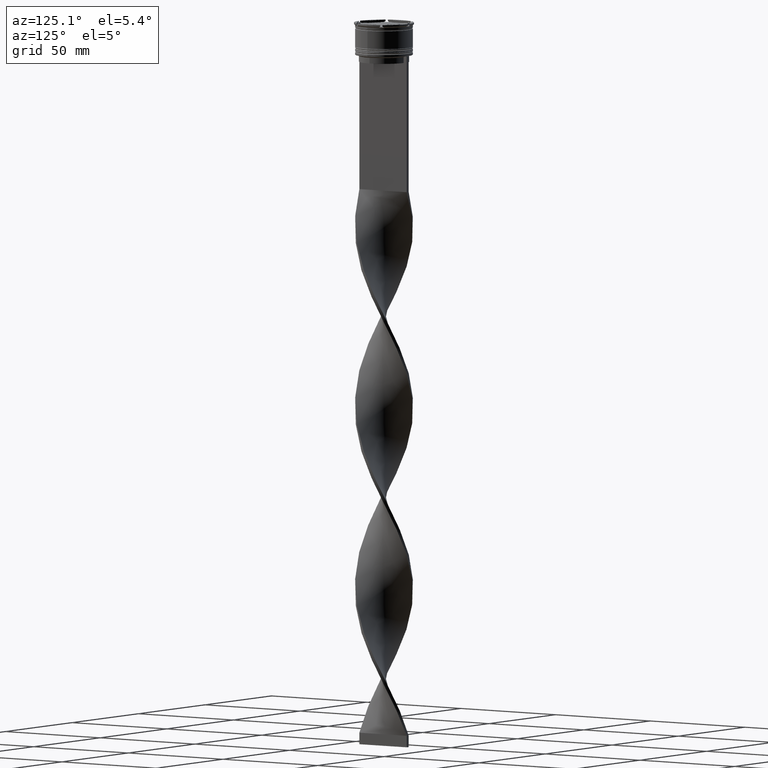
[diagram: clean part render]
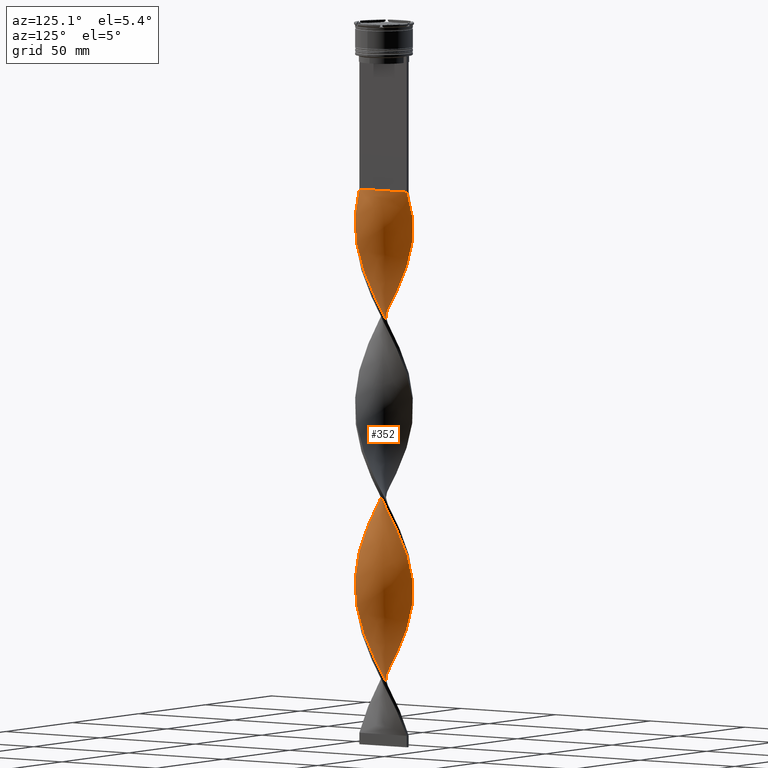
[diagram: same view with one face highlighted and labeled with its STEP entity id]
A machine part, auxiliary view. The second image highlights one B-rep face of the part: STEP entity #352.
In plain terms, the highlighted face is a freeform B-spline surface patch.
Its self-contained STEP definition (entity closure, byte-faithful):
#3 = ORIENTED_EDGE ( 'NONE', *, *, #858, .T. ) ;
#15 = CARTESIAN_POINT ( 'NONE',  ( -5.493386832225668037, 11.29630431837985860, -161.5000000000000000 ) ) ;
#20 = CARTESIAN_POINT ( 'NONE',  ( -0.2337713353077304212, 12.55902628011846645, -232.3000000000000398 ) ) ;
#34 = CARTESIAN_POINT ( 'NONE',  ( -11.08404438769758471, 5.909970402080495511, -177.2333333333333485 ) ) ;
#39 = CARTESIAN_POINT ( 'NONE',  ( -12.01658309743656083, 3.658622801590749152, -263.7666666666667084 ) ) ;
#54 = CARTESIAN_POINT ( 'NONE',  ( 8.308504678941933008, -9.369164850721755755, -171.3333333333333428 ) ) ;
#59 = CARTESIAN_POINT ( 'NONE',  ( 2.195557779805335841, 12.36783393232032502, -303.0999999999999659 ) ) ;
#64 = CARTESIAN_POINT ( 'NONE',  ( 11.08404438769758649, 5.909970402080491958, -204.7666666666666799 ) ) ;
#66 = CARTESIAN_POINT ( 'NONE',  ( 12.44097371988153711, 1.733771335307730199, -114.3000000000000398 ) ) ;
#86 = CARTESIAN_POINT ( 'NONE',  ( 11.29630431837985505, -5.493386832225676031, -181.1666666666666856 ) ) ;
#88 = CARTESIAN_POINT ( 'NONE',  ( -3.658622801590750484, -12.01658309743656083, -303.0999999999999659 ) ) ;
#107 = CARTESIAN_POINT ( 'NONE',  ( 2.696197068449242007, 12.22877840865904808, -226.3999999999999773 ) ) ;
#109 = CARTESIAN_POINT ( 'NONE',  ( -7.954078399437126912, -9.671873490467486789, -293.2666666666666515 ) ) ;
#122 = CARTESIAN_POINT ( 'NONE',  ( 0.7500000000000002220, 12.50000000000000000, -230.3333333333333428 ) ) ;
#130 = CARTESIAN_POINT ( 'NONE',  ( 5.909970402080499952, 11.08404438769758293, -295.2333333333333485 ) ) ;
#131 = CARTESIAN_POINT ( 'NONE',  ( 4.103282305125619978, -11.87210446662093766, -161.5000000000000000 ) ) ;
#134 = CARTESIAN_POINT ( 'NONE',  ( -9.369164850721755755, -8.308504678941933008, -289.3333333333333144 ) ) ;
#136 = CARTESIAN_POINT ( 'NONE',  ( 8.715271351328699012, -9.045873944214958939, -90.70000000000001705 ) ) ;
#148 = CARTESIAN_POINT ( 'NONE',  ( -0.2337713353077304212, 12.55902628011846645, -232.3000000000000114 ) ) ;
#156 = CARTESIAN_POINT ( 'NONE',  ( -6.343136139885612756, -10.79708867754993840, -139.8666666666666742 ) ) ;
#162 = CARTESIAN_POINT ( 'NONE',  ( -9.045873944214957163, -8.715271351328702565, -208.7000000000000171 ) ) ;
#177 = CARTESIAN_POINT ( 'NONE',  ( -7.954078399437126912, -9.671873490467486789, -135.9333333333333371 ) ) ;
#182 = CARTESIAN_POINT ( 'NONE',  ( -8.715271351328699012, 9.045873944214960716, -169.3666666666667027 ) ) ;
#183 = CARTESIAN_POINT ( 'NONE',  ( 12.46343010621939484, -1.214664557556532909, -108.3999999999999915 ) ) ;
#206 = CARTESIAN_POINT ( 'NONE',  ( -5.909970402080495511, -11.08404438769758293, -216.5666666666666629 ) ) ;
#219 = CARTESIAN_POINT ( 'NONE',  ( 12.11996919947063311, 3.149420042465475245, -198.8666666666666742 ) ) ;
#230 = CARTESIAN_POINT ( 'NONE',  ( -6.343136139885609204, 10.79708867754994017, -163.4666666666666401 ) ) ;
#253 = CARTESIAN_POINT ( 'NONE',  ( 4.576004816908207928, -11.65644370790820794, -238.1999999999999886 ) ) ;
#254 = CARTESIAN_POINT ( 'NONE',  ( 1.733771335307731087, -12.44097371988153711, -74.96666666666668277 ) ) ;
#258 = CARTESIAN_POINT ( 'NONE',  ( -7.571135413668909742, 10.02305835011481605, -248.0333333333333314 ) ) ;
#276 = CARTESIAN_POINT ( 'NONE',  ( 9.671873490467490342, 7.954078399437124247, -128.0666666666666629 ) ) ;
#280 = CARTESIAN_POINT ( 'NONE',  ( -10.29787303672001997, 7.192885447545555699, -98.56666666666669130 ) ) ;
#297 = CARTESIAN_POINT ( 'NONE',  ( 10.02305835011481605, -7.571135413668910630, -251.9666666666666686 ) ) ;
#301 = CARTESIAN_POINT ( 'NONE',  ( -12.11996919947063311, -3.149420042465476577, -120.2000000000000028 ) ) ;
#315 = CARTESIAN_POINT ( 'NONE',  ( 12.11996919947063134, -3.149420042465478353, -261.7999999999999545 ) ) ;
#318 = CARTESIAN_POINT ( 'NONE',  ( -12.46343010621939484, -1.214664557556531577, -116.2666666666666657 ) ) ;
#333 = CARTESIAN_POINT ( 'NONE',  ( -11.29630431837985505, -5.493386832225671590, -200.8333333333333428 ) ) ;
#338 = CARTESIAN_POINT ( 'NONE',  ( -6.740552907874703514, 10.55355136890620038, -88.73333333333334849 ) ) ;
#351 = CARTESIAN_POINT ( 'NONE',  ( -2.195557779805334508, 12.36783393232032502, -78.90000000000003411 ) ) ;
#352 = ADVANCED_FACE ( 'NONE', ( #3467 ), #603, .T. ) ;
#358 = CARTESIAN_POINT ( 'NONE',  ( -4.103282305125630636, -11.87210446662093410, -220.5000000000000284 ) ) ;
#375 = CARTESIAN_POINT ( 'NONE',  ( 6.343136139885613645, 10.79708867754993840, -218.5333333333333314 ) ) ;
#376 = CARTESIAN_POINT ( 'NONE',  ( -12.36783393232032680, -2.195557779805334508, -118.2333333333333343 ) ) ;
#377 = CARTESIAN_POINT ( 'NONE',  ( 9.045873944214958939, 8.715271351328699012, -287.3666666666667311 ) ) ;
#384 = CARTESIAN_POINT ( 'NONE',  ( -10.02305835011481250, 7.571135413668918623, -173.3000000000000114 ) ) ;
#388 = CARTESIAN_POINT ( 'NONE',  ( -12.44097371988153711, 1.733771335307731976, -267.6999999999999318 ) ) ;
#398 = DIRECTION ( 'NONE',  ( 0.000000000000000000, 1.000000000000000000, 0.000000000000000000 ) ) ;
#399 = CARTESIAN_POINT ( 'NONE',  ( 9.671873490467490342, 7.954078399437124247, -285.3999999999999773 ) ) ;
#409 = CARTESIAN_POINT ( 'NONE',  ( 12.22877840865904808, -2.696197068449241119, -187.0666666666666629 ) ) ;
#411 = CARTESIAN_POINT ( 'NONE',  ( 0.7500000000000002220, -12.50000000000000000, -73.00000000000001421 ) ) ;
#423 = CARTESIAN_POINT ( 'NONE',  ( 12.01658309743656261, -3.658622801590745155, -185.0999999999999659 ) ) ;
#433 = CARTESIAN_POINT ( 'NONE',  ( -2.195557779805334508, 12.36783393232032502, -236.2333333333333485 ) ) ;
#435 = CARTESIAN_POINT ( 'NONE',  ( 6.740552907874705291, 10.55355136890619860, -135.9333333333333371 ) ) ;
#452 = CARTESIAN_POINT ( 'NONE',  ( 7.192885447545552147, 10.29787303672002352, -216.5666666666666629 ) ) ;
#454 = CARTESIAN_POINT ( 'NONE',  ( 1.214664557556534019, 12.46343010621939307, -147.7333333333333201 ) ) ;
#472 = CARTESIAN_POINT ( 'NONE',  ( 12.46343010621939484, 1.214664557556529800, -194.9333333333333371 ) ) ;
#475 = CARTESIAN_POINT ( 'NONE',  ( -10.02305835011481605, -7.571135413668909742, -287.3666666666667311 ) ) ;
#495 = CARTESIAN_POINT ( 'NONE',  ( -2.696197068449241119, -12.22877840865904808, -147.7333333333333201 ) ) ;
#501 = CARTESIAN_POINT ( 'NONE',  ( 12.22877840865904986, 2.696197068449238898, -116.2666666666666657 ) ) ;
#513 = CARTESIAN_POINT ( 'NONE',  ( 6.740552907874702626, -10.55355136890619860, -167.4000000000000057 ) ) ;
#527 = CARTESIAN_POINT ( 'NONE',  ( 11.87210446662093588, -4.103282305125623530, -259.8333333333334281 ) ) ;
#528 = CARTESIAN_POINT ( 'NONE',  ( 11.87210446662093588, -4.103282305125623530, -102.5000000000000142 ) ) ;
#545 = CARTESIAN_POINT ( 'NONE',  ( -0.7500000000000017764, -12.50000000000000000, -309.0000000000000000 ) ) ;
#548 = CARTESIAN_POINT ( 'NONE',  ( -10.55355136890619860, 6.740552907874705291, -175.2666666666666799 ) ) ;
#573 = CARTESIAN_POINT ( 'NONE',  ( -5.493386832225668037, 11.29630431837985860, -161.5000000000000000 ) ) ;
#574 = CARTESIAN_POINT ( 'NONE',  ( 10.29787303672002352, 7.192885447545553923, -126.1000000000000227 ) ) ;
#596 = CARTESIAN_POINT ( 'NONE',  ( -9.369164850721753979, 8.308504678941934785, -171.3333333333333428 ) ) ;
#598 = CARTESIAN_POINT ( 'NONE',  ( 3.149420042465479241, 12.11996919947063134, -143.7999999999999829 ) ) ;
#603 =( BOUNDED_SURFACE ( )  B_SPLINE_SURFACE ( 1, 2, ( 
 ( #4171, #4111, #3745, #351, #1052, #3766, #3425, #1700, #2412, #3151, #3128, #629, #3787, #1748, #2751, #3491, #674, #2020, #2454, #2064, #1722, #1377, #3833, #376, #2773, #2603, #3952, #2236, #838, #3615, #866, #3979, #177, #2577, #156, #2263, #1182, #3297, #495, #4295, #1545, #2936, #3642, #4316, #1890, #131, #1520, #1858, #513, #3175, #54, #1837, #1105, #2158, #2502, #3878, #3534, #423, #2181, #1214, #962, #1692, #4143, #684, #219, #2085, #2451, #2110, #673, #1771, #2135, #2505, #2453, #764, #375, #3880, #3832, #717, #1418, #1860, #122, #148, #2931, #1371, #4150, #3804, #2081, #1741, #3461, #258, #1646, #3039, #1306, #2061, #648, #4465, #3866, #3817, #2685, #2147, #3550, #2515, #3282, #2919, #3594, #3257, #1139, #1458, #1433, #475, #3522, #2827, #109, #1872, #1094, #4235, #2492, #88, #3958, #822, #4210 ),
 ( #411, #2894, #4278, #1188, #2172, #1500, #1117, #1164, #3891, #136, #1527, #2538, #1806, #3869, #754, #2563, #844, #3572, #3622, #4302, #3189, #66, #501, #1895, #2583, #2242, #2197, #4254, #2850, #3936, #2870, #777, #435, #1826, #3211, #1478, #3914, #800, #454, #1847, #3231, #2218, #1617, #3709, #1595, #573, #230, #1232, #4075, #182, #596, #957, #548, #1962, #1277, #2355, #2608, #4322, #1640, #1985, #3014, #2943, #1300, #4412, #914, #2671, #2991, #4391, #3986, #162, #3323, #935, #3729, #206, #2332, #3667, #1257, #3348, #2632, #871, #4050, #3368, #2693, #896, #253, #4347, #3034, #4010, #615, #2004, #2653, #3647, #1209, #2268, #1552, #527, #2309, #1916, #3303, #1571, #2966, #2292, #1938, #4368, #4029, #3687, #1772, #2506, #399, #377, #638, #1053, #3388, #2374, #1108, #3410, #3152, #1686, #1126, #1469, #1397 ) ),
 .UNSPECIFIED., .F., .F., .F. ) 
 B_SPLINE_SURFACE_WITH_KNOTS ( ( 2, 2 ),
 ( 3, 2, 2, 2, 2, 2, 2, 2, 2, 2, 2, 2, 2, 2, 2, 2, 2, 2, 2, 2, 2, 2, 2, 2, 2, 2, 2, 2, 2, 2, 2, 2, 2, 2, 2, 2, 2, 2, 2, 2, 2, 2, 2, 2, 2, 2, 2, 2, 2, 2, 2, 2, 2, 2, 2, 2, 2, 2, 2, 2, 3 ),
 ( 0.000000000000000000, 1.000000000000000000 ),
 ( 0.000000000000000000, 0.01250000000000000069, 0.02500000000000000139, 0.03749999999999999861, 0.05000000000000000278, 0.06250000000000000000, 0.07499999999999999722, 0.08749999999999999445, 0.1000000000000000056, 0.1125000000000000028, 0.1250000000000000000, 0.1375000000000000111, 0.1499999999999999944, 0.1625000000000000056, 0.1749999999999999889, 0.1875000000000000000, 0.2000000000000000111, 0.2124999999999999944, 0.2250000000000000056, 0.2374999999999999889, 0.2500000000000000000, 0.2625000000000000111, 0.2750000000000000222, 0.2874999999999999778, 0.2999999999999999889, 0.3125000000000000000, 0.3250000000000000111, 0.3375000000000000222, 0.3499999999999999778, 0.3624999999999999889, 0.3750000000000000000, 0.3875000000000000111, 0.4000000000000000222, 0.4124999999999999778, 0.4249999999999999889, 0.4375000000000000000, 0.4500000000000000111, 0.4625000000000000222, 0.4749999999999999778, 0.4874999999999999889, 0.5000000000000000000, 0.5124999999999999556, 0.5250000000000000222, 0.5374999999999999778, 0.5500000000000000444, 0.5625000000000000000, 0.5749999999999999556, 0.5875000000000000222, 0.5999999999999999778, 0.6125000000000000444, 0.6250000000000000000, 0.6374999999999999556, 0.6500000000000000222, 0.6624999999999999778, 0.6750000000000000444, 0.6875000000000000000, 0.6999999999999999556, 0.7125000000000000222, 0.7249999999999999778, 0.7375000000000000444, 0.7500000000000000000 ),
 .UNSPECIFIED. ) 
 GEOMETRIC_REPRESENTATION_ITEM ( )  RATIONAL_B_SPLINE_SURFACE ( (
 ( 1.000000000000000000, 0.9969173337331279638, 1.000000000000000000, 0.9969173337331279638, 1.000000000000000000, 0.9969173337331279638, 1.000000000000000000, 0.9969173337331279638, 1.000000000000000000, 0.9969173337331279638, 1.000000000000000000, 0.9969173337331279638, 1.000000000000000000, 0.9969173337331279638, 1.000000000000000000, 0.9969173337331279638, 1.000000000000000000, 0.9969173337331279638, 1.000000000000000000, 0.9969173337331279638, 1.000000000000000000, 0.9969173337331279638, 1.000000000000000000, 0.9969173337331279638, 1.000000000000000000, 0.9969173337331279638, 1.000000000000000000, 0.9969173337331279638, 1.000000000000000000, 0.9969173337331279638, 1.000000000000000000, 0.9969173337331279638, 1.000000000000000000, 0.9969173337331279638, 1.000000000000000000, 0.9969173337331279638, 1.000000000000000000, 0.9969173337331279638, 1.000000000000000000, 0.9969173337331279638, 1.000000000000000000, 0.9969173337331279638, 1.000000000000000000, 0.9969173337331279638, 1.000000000000000000, 0.9969173337331279638, 1.000000000000000000, 0.9969173337331279638, 1.000000000000000000, 0.9969173337331279638, 1.000000000000000000, 0.9969173337331279638, 1.000000000000000000, 0.9969173337331279638, 1.000000000000000000, 0.9969173337331279638, 1.000000000000000000, 0.9969173337331279638, 1.000000000000000000, 0.9969173337331279638, 1.000000000000000000, 0.9969173337331279638, 1.000000000000000000, 0.9969173337331279638, 1.000000000000000000, 0.9969173337331279638, 1.000000000000000000, 0.9969173337331279638, 1.000000000000000000, 0.9969173337331279638, 1.000000000000000000, 0.9969173337331279638, 1.000000000000000000, 0.9969173337331279638, 1.000000000000000000, 0.9969173337331279638, 1.000000000000000000, 0.9969173337331279638, 1.000000000000000000, 0.9969173337331279638, 1.000000000000000000, 0.9969173337331279638, 1.000000000000000000, 0.9969173337331279638, 1.000000000000000000, 0.9969173337331279638, 1.000000000000000000, 0.9969173337331279638, 1.000000000000000000, 0.9969173337331279638, 1.000000000000000000, 0.9969173337331279638, 1.000000000000000000, 0.9969173337331279638, 1.000000000000000000, 0.9969173337331279638, 1.000000000000000000, 0.9969173337331279638, 1.000000000000000000, 0.9969173337331279638, 1.000000000000000000, 0.9969173337331279638, 1.000000000000000000, 0.9969173337331279638, 1.000000000000000000, 0.9969173337331279638, 1.000000000000000000, 0.9969173337331279638, 1.000000000000000000, 0.9969173337331279638, 1.000000000000000000, 0.9969173337331279638, 1.000000000000000000, 0.9969173337331279638, 1.000000000000000000, 0.9969173337331279638, 1.000000000000000000, 0.9969173337331279638, 1.000000000000000000, 0.9969173337331279638, 1.000000000000000000),
 ( 1.000000000000000000, 0.9969173337331279638, 1.000000000000000000, 0.9969173337331279638, 1.000000000000000000, 0.9969173337331279638, 1.000000000000000000, 0.9969173337331279638, 1.000000000000000000, 0.9969173337331279638, 1.000000000000000000, 0.9969173337331279638, 1.000000000000000000, 0.9969173337331279638, 1.000000000000000000, 0.9969173337331279638, 1.000000000000000000, 0.9969173337331279638, 1.000000000000000000, 0.9969173337331279638, 1.000000000000000000, 0.9969173337331279638, 1.000000000000000000, 0.9969173337331279638, 1.000000000000000000, 0.9969173337331279638, 1.000000000000000000, 0.9969173337331279638, 1.000000000000000000, 0.9969173337331279638, 1.000000000000000000, 0.9969173337331279638, 1.000000000000000000, 0.9969173337331279638, 1.000000000000000000, 0.9969173337331279638, 1.000000000000000000, 0.9969173337331279638, 1.000000000000000000, 0.9969173337331279638, 1.000000000000000000, 0.9969173337331279638, 1.000000000000000000, 0.9969173337331279638, 1.000000000000000000, 0.9969173337331279638, 1.000000000000000000, 0.9969173337331279638, 1.000000000000000000, 0.9969173337331279638, 1.000000000000000000, 0.9969173337331279638, 1.000000000000000000, 0.9969173337331279638, 1.000000000000000000, 0.9969173337331279638, 1.000000000000000000, 0.9969173337331279638, 1.000000000000000000, 0.9969173337331279638, 1.000000000000000000, 0.9969173337331279638, 1.000000000000000000, 0.9969173337331279638, 1.000000000000000000, 0.9969173337331279638, 1.000000000000000000, 0.9969173337331279638, 1.000000000000000000, 0.9969173337331279638, 1.000000000000000000, 0.9969173337331279638, 1.000000000000000000, 0.9969173337331279638, 1.000000000000000000, 0.9969173337331279638, 1.000000000000000000, 0.9969173337331279638, 1.000000000000000000, 0.9969173337331279638, 1.000000000000000000, 0.9969173337331279638, 1.000000000000000000, 0.9969173337331279638, 1.000000000000000000, 0.9969173337331279638, 1.000000000000000000, 0.9969173337331279638, 1.000000000000000000, 0.9969173337331279638, 1.000000000000000000, 0.9969173337331279638, 1.000000000000000000, 0.9969173337331279638, 1.000000000000000000, 0.9969173337331279638, 1.000000000000000000, 0.9969173337331279638, 1.000000000000000000, 0.9969173337331279638, 1.000000000000000000, 0.9969173337331279638, 1.000000000000000000, 0.9969173337331279638, 1.000000000000000000, 0.9969173337331279638, 1.000000000000000000, 0.9969173337331279638, 1.000000000000000000, 0.9969173337331279638, 1.000000000000000000, 0.9969173337331279638, 1.000000000000000000, 0.9969173337331279638, 1.000000000000000000, 0.9969173337331279638, 1.000000000000000000, 0.9969173337331279638, 1.000000000000000000, 0.9969173337331279638, 1.000000000000000000) ) ) 
 REPRESENTATION_ITEM ( '' )  SURFACE ( )  );
#615 = CARTESIAN_POINT ( 'NONE',  ( 7.954078399437126023, -9.671873490467488566, -246.0666666666666629 ) ) ;
#629 = CARTESIAN_POINT ( 'NONE',  ( -9.045873944214958939, 8.715271351328699012, -94.63333333333335418 ) ) ;
#638 = CARTESIAN_POINT ( 'NONE',  ( 8.308504678941934785, 9.369164850721753979, -289.3333333333333144 ) ) ;
#640 = CARTESIAN_POINT ( 'NONE',  ( 1.214664557556534019, 12.46343010621939307, -147.7333333333333201 ) ) ;
#642 = CARTESIAN_POINT ( 'NONE',  ( -12.01658309743656083, 3.658622801590749152, -106.4333333333333513 ) ) ;
#648 = CARTESIAN_POINT ( 'NONE',  ( -10.79708867754993840, 6.343136139885611868, -257.8666666666666742 ) ) ;
#662 = CARTESIAN_POINT ( 'NONE',  ( -1.733771335307729533, 12.44097371988153711, -153.6333333333333826 ) ) ;
#665 = CARTESIAN_POINT ( 'NONE',  ( -7.954078399437126912, -9.671873490467486789, -135.9333333333333371 ) ) ;
#673 = CARTESIAN_POINT ( 'NONE',  ( 10.55355136890619860, 6.740552907874700850, -206.7333333333333201 ) ) ;
#674 = CARTESIAN_POINT ( 'NONE',  ( -11.65644370790820794, 4.576004816908208817, -104.4666666666666828 ) ) ;
#679 = CARTESIAN_POINT ( 'NONE',  ( -12.44097371988153711, -1.733771335307734640, -192.9666666666666970 ) ) ;
#683 = CARTESIAN_POINT ( 'NONE',  ( -12.22877840865904986, 2.696197068449240231, -108.3999999999999915 ) ) ;
#684 = CARTESIAN_POINT ( 'NONE',  ( 12.36783393232032857, 2.195557779805327403, -196.9000000000000057 ) ) ;
#700 = CARTESIAN_POINT ( 'NONE',  ( -10.29787303672002707, -7.192885447545549482, -204.7666666666666799 ) ) ;
#717 = CARTESIAN_POINT ( 'NONE',  ( 3.658622801590746043, 12.01658309743656261, -224.4333333333333655 ) ) ;
#724 = CARTESIAN_POINT ( 'NONE',  ( -0.2337713353077390810, -12.55902628011846822, -228.3666666666666742 ) ) ;
#729 = CARTESIAN_POINT ( 'NONE',  ( -9.671873490467488566, 7.954078399437126023, -253.9333333333333371 ) ) ;
#748 = CARTESIAN_POINT ( 'NONE',  ( 3.149420042465479241, 12.11996919947063134, -301.1333333333333258 ) ) ;
#752 = CARTESIAN_POINT ( 'NONE',  ( -5.909970402080498175, 11.08404438769758293, -244.0999999999999943 ) ) ;
#754 = CARTESIAN_POINT ( 'NONE',  ( 11.47807442715925852, -5.006626353603059520, -100.5333333333333314 ) ) ;
#764 = CARTESIAN_POINT ( 'NONE',  ( 7.192885447545553035, 10.29787303672002530, -216.5666666666666629 ) ) ;
#775 = CARTESIAN_POINT ( 'NONE',  ( 12.01658309743656261, -3.658622801590745155, -185.0999999999999943 ) ) ;
#777 = CARTESIAN_POINT ( 'NONE',  ( 7.571135413668911518, 10.02305835011481605, -133.9666666666666686 ) ) ;
#796 = CARTESIAN_POINT ( 'NONE',  ( -10.29787303672001997, 7.192885447545555699, -255.9000000000000625 ) ) ;
#800 = CARTESIAN_POINT ( 'NONE',  ( 2.195557779805335397, 12.36783393232032502, -145.7666666666666515 ) ) ;
#820 = CARTESIAN_POINT ( 'NONE',  ( -2.696197068449241119, -12.22877840865904808, -147.7333333333333201 ) ) ;
#822 = CARTESIAN_POINT ( 'NONE',  ( -1.733771335307732864, -12.44097371988153711, -307.0333333333333030 ) ) ;
#838 = CARTESIAN_POINT ( 'NONE',  ( -10.55355136890619860, -6.740552907874702626, -128.0666666666666629 ) ) ;
#844 = CARTESIAN_POINT ( 'NONE',  ( 12.11996919947063134, -3.149420042465478353, -104.4666666666666828 ) ) ;
#858 = EDGE_CURVE ( 'NONE', #1473, #1047, #4056, .T. ) ;
#866 = CARTESIAN_POINT ( 'NONE',  ( -9.369164850721755755, -8.308504678941933008, -132.0000000000000000 ) ) ;
#870 = CARTESIAN_POINT ( 'NONE',  ( -2.696197068449241119, -12.22877840865904808, -305.0666666666666629 ) ) ;
#871 = CARTESIAN_POINT ( 'NONE',  ( -0.2337713353077390810, -12.55902628011846822, -228.3666666666666458 ) ) ;
#896 = CARTESIAN_POINT ( 'NONE',  ( 3.658622801590748708, -12.01658309743656083, -236.2333333333333769 ) ) ;
#897 = CARTESIAN_POINT ( 'NONE',  ( 5.909970402080499952, 11.08404438769758293, -137.9000000000000625 ) ) ;
#913 = CARTESIAN_POINT ( 'NONE',  ( -1.733771335307732864, -12.44097371988153711, -307.0333333333333030 ) ) ;
#914 = CARTESIAN_POINT ( 'NONE',  ( -11.65644370790820972, -4.576004816908206152, -198.8666666666666742 ) ) ;
#934 = CARTESIAN_POINT ( 'NONE',  ( -12.11996919947063311, -3.149420042465476577, -277.5333333333333030 ) ) ;
#935 = CARTESIAN_POINT ( 'NONE',  ( -7.571135413668917735, -10.02305835011481072, -212.6333333333333826 ) ) ;
#936 = CARTESIAN_POINT ( 'NONE',  ( 11.08404438769758293, -5.909970402080499952, -98.56666666666669130 ) ) ;
#957 = CARTESIAN_POINT ( 'NONE',  ( -10.02305835011481250, 7.571135413668917735, -173.3000000000000114 ) ) ;
#961 = CARTESIAN_POINT ( 'NONE',  ( -5.909970402080498175, 11.08404438769758293, -86.76666666666666572 ) ) ;
#962 = CARTESIAN_POINT ( 'NONE',  ( 12.50000000000000000, -0.7500000000000025535, -191.0000000000000000 ) ) ;
#978 = CARTESIAN_POINT ( 'NONE',  ( -12.11996919947063134, 3.149420042465479241, -183.1333333333333258 ) ) ;
#980 = CARTESIAN_POINT ( 'NONE',  ( -11.65644370790820794, 4.576004816908208817, -104.4666666666666828 ) ) ;
#999 = CARTESIAN_POINT ( 'NONE',  ( 0.7500000000000002220, -12.50000000000000000, -230.3333333333333428 ) ) ;
#1002 = CARTESIAN_POINT ( 'NONE',  ( -4.103282305125622642, 11.87210446662093588, -82.83333333333335702 ) ) ;
#1021 = CARTESIAN_POINT ( 'NONE',  ( -7.192885447545552147, 10.29787303672002352, -165.4333333333333371 ) ) ;
#1024 = CARTESIAN_POINT ( 'NONE',  ( -11.87210446662093588, -4.103282305125621754, -122.1666666666666856 ) ) ;
#1025 = CARTESIAN_POINT ( 'NONE',  ( -0.7499999999999996669, 4.166666666666667851, -309.0000000000000000 ) ) ;
#1038 = CARTESIAN_POINT ( 'NONE',  ( -12.01658309743656439, -3.658622801590741158, -196.9000000000000057 ) ) ;
#1042 = CARTESIAN_POINT ( 'NONE',  ( -11.08404438769758293, -5.909970402080498175, -126.1000000000000227 ) ) ;
#1047 = VERTEX_POINT ( 'NONE', #1565 ) ;
#1052 = CARTESIAN_POINT ( 'NONE',  ( -3.149420042465477465, 12.11996919947063134, -80.86666666666667425 ) ) ;
#1053 = CARTESIAN_POINT ( 'NONE',  ( 7.571135413668911518, 10.02305835011481605, -291.3000000000000682 ) ) ;
#1059 = CARTESIAN_POINT ( 'NONE',  ( -8.308504678941934785, -9.369164850721752202, -210.6666666666666572 ) ) ;
#1064 = CARTESIAN_POINT ( 'NONE',  ( 1.733771335307739747, 12.44097371988153533, -228.3666666666666742 ) ) ;
#1086 = CARTESIAN_POINT ( 'NONE',  ( 10.29787303672002352, 7.192885447545553923, -283.4333333333333940 ) ) ;
#1091 = CARTESIAN_POINT ( 'NONE',  ( 12.11996919947063311, 3.149420042465475245, -198.8666666666666742 ) ) ;
#1094 = CARTESIAN_POINT ( 'NONE',  ( -6.343136139885612756, -10.79708867754993840, -297.2000000000000455 ) ) ;
#1098 = ORIENTED_EDGE ( 'NONE', *, *, #2501, .F. ) ;
#1105 = CARTESIAN_POINT ( 'NONE',  ( 9.671873490467486789, -7.954078399437126912, -175.2666666666666799 ) ) ;
#1108 = CARTESIAN_POINT ( 'NONE',  ( 5.006626353603060409, 11.47807442715925852, -297.2000000000000455 ) ) ;
#1115 = CARTESIAN_POINT ( 'NONE',  ( 5.909970402080496399, -11.08404438769758293, -165.4333333333333371 ) ) ;
#1117 = CARTESIAN_POINT ( 'NONE',  ( 6.343136139885610980, -10.79708867754994017, -84.80000000000001137 ) ) ;
#1126 = CARTESIAN_POINT ( 'NONE',  ( 1.214664557556534019, 12.46343010621939307, -305.0666666666666629 ) ) ;
#1137 = CARTESIAN_POINT ( 'NONE',  ( 10.02305835011481427, 7.571135413668915071, -208.7000000000000171 ) ) ;
#1139 = CARTESIAN_POINT ( 'NONE',  ( -11.47807442715926030, -5.006626353603058632, -281.4666666666666401 ) ) ;
#1159 = CARTESIAN_POINT ( 'NONE',  ( 11.29630431837985682, 5.493386832225668037, -279.4999999999999432 ) ) ;
#1162 = CARTESIAN_POINT ( 'NONE',  ( 12.36783393232032857, 2.195557779805326959, -196.9000000000000057 ) ) ;
#1164 = CARTESIAN_POINT ( 'NONE',  ( 7.192885447545554811, -10.29787303672002530, -86.76666666666666572 ) ) ;
#1182 = CARTESIAN_POINT ( 'NONE',  ( -4.576004816908209705, -11.65644370790820794, -143.7999999999999829 ) ) ;
#1188 = CARTESIAN_POINT ( 'NONE',  ( 3.658622801590748708, -12.01658309743656083, -78.90000000000003411 ) ) ;
#1207 = CARTESIAN_POINT ( 'NONE',  ( -4.576004816908209705, -11.65644370790820794, -301.1333333333333258 ) ) ;
#1209 = CARTESIAN_POINT ( 'NONE',  ( 10.55355136890620038, -6.740552907874703514, -253.9333333333333371 ) ) ;
#1214 = CARTESIAN_POINT ( 'NONE',  ( 12.44097371988153533, -1.733771335307738859, -189.0333333333333314 ) ) ;
#1232 = CARTESIAN_POINT ( 'NONE',  ( -7.192885447545553035, 10.29787303672002530, -165.4333333333333655 ) ) ;
#1233 = CARTESIAN_POINT ( 'NONE',  ( 10.79708867754994017, 6.343136139885610980, -124.1333333333333400 ) ) ;
#1257 = CARTESIAN_POINT ( 'NONE',  ( -3.149420042465480574, -12.11996919947063134, -222.4666666666666686 ) ) ;
#1258 = CARTESIAN_POINT ( 'NONE',  ( 7.192885447545553923, -10.29787303672002352, -86.76666666666666572 ) ) ;
#1277 = CARTESIAN_POINT ( 'NONE',  ( -11.47807442715925852, 5.006626353603060409, -179.1999999999999886 ) ) ;
#1278 = CARTESIAN_POINT ( 'NONE',  ( 12.11996919947063134, -3.149420042465478353, -104.4666666666666828 ) ) ;
#1300 = CARTESIAN_POINT ( 'NONE',  ( -12.22877840865904986, -2.696197068449237122, -194.9333333333333371 ) ) ;
#1306 = CARTESIAN_POINT ( 'NONE',  ( -9.671873490467488566, 7.954078399437126023, -253.9333333333333371 ) ) ;
#1319 = VECTOR ( 'NONE', #398, 1000.000000000000000 ) ;
#1329 = CARTESIAN_POINT ( 'NONE',  ( -5.006626353603058632, 11.47807442715926030, -84.80000000000001137 ) ) ;
#1344 = CARTESIAN_POINT ( 'NONE',  ( 11.47807442715925852, -5.006626353603059520, -257.8666666666666742 ) ) ;
#1347 = CARTESIAN_POINT ( 'NONE',  ( -0.7499999999999986677, 12.50000000000000000, -309.0000000000000000 ) ) ;
#1363 = CARTESIAN_POINT ( 'NONE',  ( -12.22877840865904986, -2.696197068449237122, -194.9333333333333371 ) ) ;
#1371 = CARTESIAN_POINT ( 'NONE',  ( -2.195557779805334508, 12.36783393232032502, -236.2333333333333769 ) ) ;
#1377 = CARTESIAN_POINT ( 'NONE',  ( -12.55902628011846645, -0.2337713353077295608, -114.3000000000000398 ) ) ;
#1386 = CARTESIAN_POINT ( 'NONE',  ( 7.954078399437126023, -9.671873490467488566, -246.0666666666666629 ) ) ;
#1389 = CARTESIAN_POINT ( 'NONE',  ( -11.47807442715926030, -5.006626353603058632, -124.1333333333333400 ) ) ;
#1397 = CARTESIAN_POINT ( 'NONE',  ( -0.7499999999999986677, 12.50000000000000000, -309.0000000000000000 ) ) ;
#1403 = CARTESIAN_POINT ( 'NONE',  ( -12.55902628011846822, 0.2337713353077382206, -189.0333333333333314 ) ) ;
#1407 = CARTESIAN_POINT ( 'NONE',  ( -11.65644370790820794, 4.576004816908208817, -261.7999999999999545 ) ) ;
#1418 = CARTESIAN_POINT ( 'NONE',  ( 2.696197068449242007, 12.22877840865904808, -226.3999999999999773 ) ) ;
#1425 = CARTESIAN_POINT ( 'NONE',  ( -12.36783393232032680, 2.195557779805331844, -185.0999999999999943 ) ) ;
#1431 = CARTESIAN_POINT ( 'NONE',  ( 12.55902628011846645, 0.2337713353077338907, -192.9666666666666970 ) ) ;
#1433 = CARTESIAN_POINT ( 'NONE',  ( -10.55355136890619860, -6.740552907874702626, -285.3999999999999773 ) ) ;
#1455 = CARTESIAN_POINT ( 'NONE',  ( 0.2337713353077288947, -12.55902628011846645, -153.6333333333333826 ) ) ;
#1458 = CARTESIAN_POINT ( 'NONE',  ( -11.08404438769758293, -5.909970402080497287, -283.4333333333333940 ) ) ;
#1469 = CARTESIAN_POINT ( 'NONE',  ( 0.2337713353077321421, 12.55902628011846645, -307.0333333333333030 ) ) ;
#1473 = VERTEX_POINT ( 'NONE', #3018 ) ;
#1476 = CARTESIAN_POINT ( 'NONE',  ( 11.65644370790820794, -4.576004816908210593, -183.1333333333333258 ) ) ;
#1478 = CARTESIAN_POINT ( 'NONE',  ( 4.103282305125623530, 11.87210446662093588, -141.8333333333333144 ) ) ;
#1494 = CARTESIAN_POINT ( 'NONE',  ( 7.571135413668912406, 10.02305835011481605, -291.3000000000000682 ) ) ;
#1498 = CARTESIAN_POINT ( 'NONE',  ( -6.740552907874703514, 10.55355136890620038, -246.0666666666666629 ) ) ;
#1500 = CARTESIAN_POINT ( 'NONE',  ( 5.493386832225668925, -11.29630431837985682, -82.83333333333335702 ) ) ;
#1518 = CARTESIAN_POINT ( 'NONE',  ( 8.308504678941934785, 9.369164850721753979, -289.3333333333333144 ) ) ;
#1520 = CARTESIAN_POINT ( 'NONE',  ( 5.006626353603056856, -11.47807442715926030, -163.4666666666666401 ) ) ;
#1525 = CARTESIAN_POINT ( 'NONE',  ( -8.715271351328700788, -9.045873944214958939, -291.3000000000000682 ) ) ;
#1527 = CARTESIAN_POINT ( 'NONE',  ( 9.369164850721755755, -8.308504678941934785, -92.66666666666667140 ) ) ;
#1544 = CARTESIAN_POINT ( 'NONE',  ( 4.103282305125623530, 11.87210446662093588, -299.1666666666666856 ) ) ;
#1545 = CARTESIAN_POINT ( 'NONE',  ( -0.7500000000000017764, -12.50000000000000000, -151.6666666666666856 ) ) ;
#1552 = CARTESIAN_POINT ( 'NONE',  ( 11.47807442715925852, -5.006626353603059520, -257.8666666666666742 ) ) ;
#1565 = CARTESIAN_POINT ( 'NONE',  ( -0.7499999999999986677, 12.50000000000000000, -309.0000000000000000 ) ) ;
#1570 = CARTESIAN_POINT ( 'NONE',  ( -11.87210446662093588, -4.103282305125621754, -279.4999999999999432 ) ) ;
#1571 = CARTESIAN_POINT ( 'NONE',  ( 12.55902628011846645, -0.2337713353077312817, -267.6999999999999318 ) ) ;
#1572 = CARTESIAN_POINT ( 'NONE',  ( 12.44097371988153711, 1.733771335307730199, -114.3000000000000256 ) ) ;
#1594 = CARTESIAN_POINT ( 'NONE',  ( -5.493386832225669814, -11.29630431837985682, -299.1666666666666856 ) ) ;
#1595 = CARTESIAN_POINT ( 'NONE',  ( -4.576004816908207040, 11.65644370790820972, -159.5333333333333314 ) ) ;
#1617 = CARTESIAN_POINT ( 'NONE',  ( -2.696197068449238010, 12.22877840865904986, -155.6000000000000227 ) ) ;
#1627 = CARTESIAN_POINT ( 'NONE',  ( -0.7500000000000007772, -4.166666666666667851, -309.0000000000000000 ) ) ;
#1640 = CARTESIAN_POINT ( 'NONE',  ( -12.46343010621939307, 1.214664557556534463, -187.0666666666666629 ) ) ;
#1646 = CARTESIAN_POINT ( 'NONE',  ( -8.308504678941934785, 9.369164850721755755, -250.0000000000000000 ) ) ;
#1666 = CARTESIAN_POINT ( 'NONE',  ( 6.740552907874705291, 10.55355136890619860, -135.9333333333333371 ) ) ;
#1686 = CARTESIAN_POINT ( 'NONE',  ( 2.195557779805335397, 12.36783393232032502, -303.0999999999999659 ) ) ;
#1687 = CARTESIAN_POINT ( 'NONE',  ( 10.55355136890620038, -6.740552907874703514, -253.9333333333333371 ) ) ;
#1691 = CARTESIAN_POINT ( 'NONE',  ( -8.308504678941934785, 9.369164850721755755, -92.66666666666667140 ) ) ;
#1692 = CARTESIAN_POINT ( 'NONE',  ( 12.55902628011846645, 0.2337713353077338907, -192.9666666666666970 ) ) ;
#1700 = CARTESIAN_POINT ( 'NONE',  ( -5.909970402080497287, 11.08404438769758293, -86.76666666666666572 ) ) ;
#1701 = ORIENTED_EDGE ( 'NONE', *, *, #2048, .F. ) ;
#1706 = CARTESIAN_POINT ( 'NONE',  ( 12.36783393232032502, -2.195557779805335841, -263.7666666666667084 ) ) ;
#1709 = CARTESIAN_POINT ( 'NONE',  ( -5.493386832225669814, -11.29630431837985682, -141.8333333333333428 ) ) ;
#1722 = CARTESIAN_POINT ( 'NONE',  ( -12.50000000000000000, 0.7500000000000009992, -112.3333333333333428 ) ) ;
#1731 = CARTESIAN_POINT ( 'NONE',  ( -9.671873490467490342, -7.954078399437122471, -206.7333333333333201 ) ) ;
#1741 = CARTESIAN_POINT ( 'NONE',  ( -5.909970402080497287, 11.08404438769758293, -244.0999999999999659 ) ) ;
#1748 = CARTESIAN_POINT ( 'NONE',  ( -10.29787303672002174, 7.192885447545556588, -98.56666666666669130 ) ) ;
#1756 = CARTESIAN_POINT ( 'NONE',  ( 7.192885447545553923, -10.29787303672002352, -244.0999999999999943 ) ) ;
#1771 = CARTESIAN_POINT ( 'NONE',  ( 10.02305835011481427, 7.571135413668914182, -208.7000000000000171 ) ) ;
#1772 = CARTESIAN_POINT ( 'NONE',  ( 10.79708867754994017, 6.343136139885610980, -281.4666666666666401 ) ) ;
#1776 = CARTESIAN_POINT ( 'NONE',  ( 2.696197068449239787, -12.22877840865904986, -234.2666666666666515 ) ) ;
#1777 = EDGE_CURVE ( 'NONE', #3450, #3366, #2325, .T. ) ;
#1781 = CARTESIAN_POINT ( 'NONE',  ( 5.493386832225676919, 11.29630431837985505, -220.5000000000000284 ) ) ;
#1797 = CARTESIAN_POINT ( 'NONE',  ( 12.01658309743656261, 3.658622801590747819, -275.5666666666666060 ) ) ;
#1802 = CARTESIAN_POINT ( 'NONE',  ( -3.658622801590750040, -12.01658309743656083, -145.7666666666666515 ) ) ;
#1806 = CARTESIAN_POINT ( 'NONE',  ( 10.55355136890620038, -6.740552907874703514, -96.60000000000000853 ) ) ;
#1823 = CARTESIAN_POINT ( 'NONE',  ( -4.103282305125622642, 11.87210446662093588, -240.1666666666666856 ) ) ;
#1826 = CARTESIAN_POINT ( 'NONE',  ( 5.909970402080499063, 11.08404438769758293, -137.9000000000000625 ) ) ;
#1837 = CARTESIAN_POINT ( 'NONE',  ( 9.045873944214955387, -8.715271351328706118, -173.3000000000000114 ) ) ;
#1845 = CARTESIAN_POINT ( 'NONE',  ( 7.571135413668909742, -10.02305835011481783, -169.3666666666667027 ) ) ;
#1847 = CARTESIAN_POINT ( 'NONE',  ( 0.2337713353077321421, 12.55902628011846645, -149.7000000000000455 ) ) ;
#1858 = CARTESIAN_POINT ( 'NONE',  ( 5.909970402080495511, -11.08404438769758293, -165.4333333333333655 ) ) ;
#1860 = CARTESIAN_POINT ( 'NONE',  ( 1.733771335307739747, 12.44097371988153533, -228.3666666666666458 ) ) ;
#1870 = CARTESIAN_POINT ( 'NONE',  ( -11.47807442715926030, -5.006626353603058632, -281.4666666666666401 ) ) ;
#1872 = CARTESIAN_POINT ( 'NONE',  ( -7.192885447545556588, -10.29787303672002174, -295.2333333333332916 ) ) ;
#1890 = CARTESIAN_POINT ( 'NONE',  ( 3.149420042465475689, -12.11996919947063311, -159.5333333333333314 ) ) ;
#1895 = CARTESIAN_POINT ( 'NONE',  ( 12.01658309743656261, 3.658622801590747819, -118.2333333333333343 ) ) ;
#1915 = CARTESIAN_POINT ( 'NONE',  ( -7.192885447545555699, -10.29787303672001997, -295.2333333333333485 ) ) ;
#1916 = CARTESIAN_POINT ( 'NONE',  ( 12.36783393232032502, -2.195557779805335397, -263.7666666666667652 ) ) ;
#1918 = CARTESIAN_POINT ( 'NONE',  ( 7.954078399437126023, -9.671873490467488566, -88.73333333333334849 ) ) ;
#1938 = CARTESIAN_POINT ( 'NONE',  ( 12.22877840865904986, 2.696197068449238898, -273.5999999999999659 ) ) ;
#1962 = CARTESIAN_POINT ( 'NONE',  ( -11.08404438769758471, 5.909970402080495511, -177.2333333333333485 ) ) ;
#1963 = CARTESIAN_POINT ( 'NONE',  ( 7.571135413668912406, 10.02305835011481605, -133.9666666666666686 ) ) ;
#1985 = CARTESIAN_POINT ( 'NONE',  ( -12.55902628011846822, 0.2337713353077382206, -189.0333333333333314 ) ) ;
#2004 = CARTESIAN_POINT ( 'NONE',  ( 8.715271351328699012, -9.045873944214958939, -248.0333333333333314 ) ) ;
#2005 = CARTESIAN_POINT ( 'NONE',  ( 9.045873944214958939, 8.715271351328699012, -130.0333333333333314 ) ) ;
#2020 = CARTESIAN_POINT ( 'NONE',  ( -12.01658309743656083, 3.658622801590749596, -106.4333333333333513 ) ) ;
#2029 = CARTESIAN_POINT ( 'NONE',  ( 5.493386832225668925, -11.29630431837985682, -240.1666666666666856 ) ) ;
#2032 = CARTESIAN_POINT ( 'NONE',  ( -12.44097371988153711, 1.733771335307731976, -110.3666666666666742 ) ) ;
#2048 = EDGE_CURVE ( 'NONE', #1473, #3450, #2159, .T. ) ;
#2049 = CARTESIAN_POINT ( 'NONE',  ( -3.658622801590746931, 12.01658309743656261, -157.5666666666666913 ) ) ;
#2052 = CARTESIAN_POINT ( 'NONE',  ( -7.192885447545555699, -10.29787303672001997, -137.9000000000000625 ) ) ;
#2061 = CARTESIAN_POINT ( 'NONE',  ( -10.29787303672002174, 7.192885447545556588, -255.9000000000000909 ) ) ;
#2064 = CARTESIAN_POINT ( 'NONE',  ( -12.44097371988153711, 1.733771335307731976, -110.3666666666666600 ) ) ;
#2069 = CARTESIAN_POINT ( 'NONE',  ( -6.343136139885609204, 10.79708867754994017, -163.4666666666666401 ) ) ;
#2081 = CARTESIAN_POINT ( 'NONE',  ( -5.006626353603058632, 11.47807442715926030, -242.1333333333333258 ) ) ;
#2085 = CARTESIAN_POINT ( 'NONE',  ( 11.87210446662093410, 4.103282305125625307, -200.8333333333333428 ) ) ;
#2095 = CARTESIAN_POINT ( 'NONE',  ( -6.740552907874707067, -10.55355136890619860, -214.5999999999999943 ) ) ;
#2110 = CARTESIAN_POINT ( 'NONE',  ( 11.08404438769758649, 5.909970402080491958, -204.7666666666666799 ) ) ;
#2119 = CARTESIAN_POINT ( 'NONE',  ( 4.576004816908207928, -11.65644370790820794, -238.1999999999999886 ) ) ;
#2123 = CARTESIAN_POINT ( 'NONE',  ( 12.50000000000000000, -0.7500000000000025535, -191.0000000000000000 ) ) ;
#2135 = CARTESIAN_POINT ( 'NONE',  ( 9.369164850721755755, 8.308504678941931232, -210.6666666666666572 ) ) ;
#2145 = CARTESIAN_POINT ( 'NONE',  ( -8.308504678941934785, 9.369164850721755755, -250.0000000000000000 ) ) ;
#2147 = CARTESIAN_POINT ( 'NONE',  ( -12.44097371988153711, 1.733771335307731976, -267.6999999999999318 ) ) ;
#2158 = CARTESIAN_POINT ( 'NONE',  ( 10.29787303672002707, -7.192885447545552147, -177.2333333333333485 ) ) ;
#2159 = LINE ( 'NONE', #3509, #1319 ) ;
#2165 = CARTESIAN_POINT ( 'NONE',  ( 9.045873944214958939, 8.715271351328699012, -287.3666666666667311 ) ) ;
#2170 = CARTESIAN_POINT ( 'NONE',  ( 3.658622801590746043, 12.01658309743656261, -224.4333333333333371 ) ) ;
#2172 = CARTESIAN_POINT ( 'NONE',  ( 4.576004816908207928, -11.65644370790820794, -80.86666666666667425 ) ) ;
#2181 = CARTESIAN_POINT ( 'NONE',  ( 12.22877840865904808, -2.696197068449241119, -187.0666666666666629 ) ) ;
#2191 = CARTESIAN_POINT ( 'NONE',  ( -0.7500000000000017764, -12.50000000000000000, -309.0000000000000000 ) ) ;
#2194 = CARTESIAN_POINT ( 'NONE',  ( 12.44097371988153533, -1.733771335307738859, -189.0333333333333314 ) ) ;
#2197 = CARTESIAN_POINT ( 'NONE',  ( 10.79708867754994017, 6.343136139885610980, -124.1333333333333400 ) ) ;
#2216 = CARTESIAN_POINT ( 'NONE',  ( 3.149420042465475689, -12.11996919947063311, -159.5333333333333314 ) ) ;
#2218 = CARTESIAN_POINT ( 'NONE',  ( -1.733771335307729533, 12.44097371988153711, -153.6333333333333826 ) ) ;
#2236 = CARTESIAN_POINT ( 'NONE',  ( -11.08404438769758293, -5.909970402080497287, -126.1000000000000369 ) ) ;
#2242 = CARTESIAN_POINT ( 'NONE',  ( 11.29630431837985682, 5.493386832225668037, -122.1666666666666998 ) ) ;
#2263 = CARTESIAN_POINT ( 'NONE',  ( -5.493386832225669814, -11.29630431837985682, -141.8333333333333144 ) ) ;
#2268 = CARTESIAN_POINT ( 'NONE',  ( 11.08404438769758293, -5.909970402080499063, -255.9000000000000909 ) ) ;
#2292 = CARTESIAN_POINT ( 'NONE',  ( 12.44097371988153711, 1.733771335307730199, -271.6333333333332689 ) ) ;
#2309 = CARTESIAN_POINT ( 'NONE',  ( 12.11996919947063134, -3.149420042465478353, -261.7999999999999545 ) ) ;
#2325 =( BOUNDED_CURVE ( )  B_SPLINE_CURVE ( 2, ( #2700, #2379, #2760, #3452, #3117, #1002, #1329, #961, #338, #3757, #1691, #4141, #3393, #280, #3797, #3061, #980, #642, #683, #2032, #3079, #4502, #318, #3417, #301, #1024, #1389, #1042, #4457, #2784, #2399, #3777, #665, #2052, #3435, #1709, #3187, #1802, #820, #4233, #2558, #1455, #4252, #3499, #2216, #4208, #2466, #1115, #2848, #1845, #2513, #3520, #3209, #3592, #3889, #86, #1476, #775, #409, #2194, #2123, #1431, #472, #1162, #1091, #2868, #3570, #64, #3545, #1137, #2490, #3934, #3161, #452, #3140, #1781, #2536, #2170, #107, #1064, #2802, #20, #3867, #433, #3229, #1823, #2825, #752, #1498, #3842, #2145, #3912, #729, #796, #2891, #4276, #1407, #39, #4182, #388, #3666, #2941, #2607, #2331, #934, #1570, #1870, #3708, #3255, #3984, #134, #1525, #2581, #1915, #3301, #1594, #1207, #2965, #870, #913, #545 ),
 .UNSPECIFIED., .F., .T. ) 
 B_SPLINE_CURVE_WITH_KNOTS ( ( 3, 2, 2, 2, 2, 2, 2, 2, 2, 2, 2, 2, 2, 2, 2, 2, 2, 2, 2, 2, 2, 2, 2, 2, 2, 2, 2, 2, 2, 2, 2, 2, 2, 2, 2, 2, 2, 2, 2, 2, 2, 2, 2, 2, 2, 2, 2, 2, 2, 2, 2, 2, 2, 2, 2, 2, 2, 2, 2, 2, 3 ),
 ( 0.000000000000000000, 0.01250000000000000243, 0.02500000000000000486, 0.03749999999999999861, 0.05000000000000000971, 0.06250000000000000000, 0.07499999999999999722, 0.08749999999999998057, 0.1000000000000000194, 0.1125000000000000028, 0.1250000000000000000, 0.1375000000000000111, 0.1499999999999999944, 0.1625000000000000056, 0.1749999999999999611, 0.1875000000000000000, 0.2000000000000000389, 0.2124999999999999944, 0.2250000000000000056, 0.2374999999999999611, 0.2500000000000000000, 0.2625000000000000111, 0.2750000000000000222, 0.2874999999999999778, 0.2999999999999999889, 0.3125000000000000000, 0.3250000000000000111, 0.3375000000000000777, 0.3499999999999999223, 0.3624999999999999889, 0.3750000000000000000, 0.3875000000000000111, 0.4000000000000000777, 0.4124999999999999223, 0.4249999999999999889, 0.4375000000000000000, 0.4500000000000000111, 0.4625000000000000777, 0.4749999999999999223, 0.4874999999999999889, 0.5000000000000000000, 0.5124999999999999556, 0.5250000000000000222, 0.5374999999999999778, 0.5500000000000000444, 0.5625000000000000000, 0.5749999999999999556, 0.5875000000000000222, 0.5999999999999999778, 0.6125000000000000444, 0.6250000000000000000, 0.6374999999999999556, 0.6500000000000000222, 0.6624999999999999778, 0.6750000000000001554, 0.6875000000000000000, 0.6999999999999998446, 0.7125000000000000222, 0.7249999999999999778, 0.7375000000000001554, 0.7500000000000000000 ),
 .UNSPECIFIED. ) 
 CURVE ( )  GEOMETRIC_REPRESENTATION_ITEM ( )  RATIONAL_B_SPLINE_CURVE ( ( 1.000000000000000000, 0.9969173337331279638, 1.000000000000000000, 0.9969173337331279638, 1.000000000000000000, 0.9969173337331279638, 1.000000000000000000, 0.9969173337331279638, 1.000000000000000000, 0.9969173337331279638, 1.000000000000000000, 0.9969173337331279638, 1.000000000000000000, 0.9969173337331279638, 1.000000000000000000, 0.9969173337331279638, 1.000000000000000000, 0.9969173337331279638, 1.000000000000000000, 0.9969173337331279638, 1.000000000000000000, 0.9969173337331279638, 1.000000000000000000, 0.9969173337331279638, 1.000000000000000000, 0.9969173337331279638, 1.000000000000000000, 0.9969173337331279638, 1.000000000000000000, 0.9969173337331279638, 1.000000000000000000, 0.9969173337331279638, 1.000000000000000000, 0.9969173337331279638, 1.000000000000000000, 0.9969173337331279638, 1.000000000000000000, 0.9969173337331279638, 1.000000000000000000, 0.9969173337331279638, 1.000000000000000000, 0.9969173337331279638, 1.000000000000000000, 0.9969173337331279638, 1.000000000000000000, 0.9969173337331279638, 1.000000000000000000, 0.9969173337331279638, 1.000000000000000000, 0.9969173337331279638, 1.000000000000000000, 0.9969173337331279638, 1.000000000000000000, 0.9969173337331279638, 1.000000000000000000, 0.9969173337331279638, 1.000000000000000000, 0.9969173337331279638, 1.000000000000000000, 0.9969173337331279638, 1.000000000000000000, 0.9969173337331279638, 1.000000000000000000, 0.9969173337331279638, 1.000000000000000000, 0.9969173337331279638, 1.000000000000000000, 0.9969173337331279638, 1.000000000000000000, 0.9969173337331279638, 1.000000000000000000, 0.9969173337331279638, 1.000000000000000000, 0.9969173337331279638, 1.000000000000000000, 0.9969173337331279638, 1.000000000000000000, 0.9969173337331279638, 1.000000000000000000, 0.9969173337331279638, 1.000000000000000000, 0.9969173337331279638, 1.000000000000000000, 0.9969173337331279638, 1.000000000000000000, 0.9969173337331279638, 1.000000000000000000, 0.9969173337331279638, 1.000000000000000000, 0.9969173337331279638, 1.000000000000000000, 0.9969173337331279638, 1.000000000000000000, 0.9969173337331279638, 1.000000000000000000, 0.9969173337331279638, 1.000000000000000000, 0.9969173337331279638, 1.000000000000000000, 0.9969173337331279638, 1.000000000000000000, 0.9969173337331279638, 1.000000000000000000, 0.9969173337331279638, 1.000000000000000000, 0.9969173337331279638, 1.000000000000000000, 0.9969173337331279638, 1.000000000000000000, 0.9969173337331279638, 1.000000000000000000, 0.9969173337331279638, 1.000000000000000000, 0.9969173337331279638, 1.000000000000000000, 0.9969173337331279638, 1.000000000000000000, 0.9969173337331279638, 1.000000000000000000, 0.9969173337331279638, 1.000000000000000000 ) ) 
 REPRESENTATION_ITEM ( '' )  );
#2331 = CARTESIAN_POINT ( 'NONE',  ( -12.36783393232032680, -2.195557779805334508, -275.5666666666666060 ) ) ;
#2332 = CARTESIAN_POINT ( 'NONE',  ( -5.006626353603061297, -11.47807442715925852, -218.5333333333333314 ) ) ;
#2333 = CARTESIAN_POINT ( 'NONE',  ( 12.55902628011846645, -0.2337713353077312817, -110.3666666666666742 ) ) ;
#2355 = CARTESIAN_POINT ( 'NONE',  ( -11.87210446662093410, 4.103282305125628859, -181.1666666666667140 ) ) ;
#2356 = CARTESIAN_POINT ( 'NONE',  ( 12.36783393232032502, -2.195557779805335841, -106.4333333333333513 ) ) ;
#2374 = CARTESIAN_POINT ( 'NONE',  ( 5.909970402080499063, 11.08404438769758293, -295.2333333333332916 ) ) ;
#2375 = CARTESIAN_POINT ( 'NONE',  ( -12.46343010621939307, 1.214664557556534463, -187.0666666666666629 ) ) ;
#2379 = CARTESIAN_POINT ( 'NONE',  ( -0.2337713353077304212, 12.55902628011846645, -74.96666666666668277 ) ) ;
#2396 = CARTESIAN_POINT ( 'NONE',  ( 3.658622801590748264, -12.01658309743656083, -236.2333333333333485 ) ) ;
#2399 = CARTESIAN_POINT ( 'NONE',  ( -9.369164850721755755, -8.308504678941933008, -132.0000000000000000 ) ) ;
#2412 = CARTESIAN_POINT ( 'NONE',  ( -6.740552907874703514, 10.55355136890620038, -88.73333333333334849 ) ) ;
#2419 = CARTESIAN_POINT ( 'NONE',  ( -5.006626353603061297, -11.47807442715925852, -218.5333333333333314 ) ) ;
#2435 = CARTESIAN_POINT ( 'NONE',  ( -10.79708867754994017, -6.343136139885609204, -202.8000000000000114 ) ) ;
#2451 = CARTESIAN_POINT ( 'NONE',  ( 11.47807442715926030, 5.006626353603056856, -202.8000000000000114 ) ) ;
#2453 = CARTESIAN_POINT ( 'NONE',  ( 7.954078399437128688, 9.671873490467486789, -214.5999999999999943 ) ) ;
#2454 = CARTESIAN_POINT ( 'NONE',  ( -12.22877840865904986, 2.696197068449240231, -108.3999999999999915 ) ) ;
#2461 = CARTESIAN_POINT ( 'NONE',  ( -12.50000000000000000, -0.7499999999999980016, -191.0000000000000000 ) ) ;
#2466 = CARTESIAN_POINT ( 'NONE',  ( 5.006626353603056856, -11.47807442715926030, -163.4666666666666401 ) ) ;
#2490 = CARTESIAN_POINT ( 'NONE',  ( 9.369164850721755755, 8.308504678941931232, -210.6666666666666572 ) ) ;
#2492 = CARTESIAN_POINT ( 'NONE',  ( -4.576004816908209705, -11.65644370790820794, -301.1333333333333258 ) ) ;
#2501 = EDGE_CURVE ( 'NONE', #3366, #1047, #2990, .T. ) ;
#2502 = CARTESIAN_POINT ( 'NONE',  ( 10.79708867754993840, -6.343136139885612756, -179.1999999999999886 ) ) ;
#2505 = CARTESIAN_POINT ( 'NONE',  ( 8.715271351328704341, 9.045873944214953610, -212.6333333333333826 ) ) ;
#2506 = CARTESIAN_POINT ( 'NONE',  ( 10.29787303672002530, 7.192885447545554811, -283.4333333333333940 ) ) ;
#2509 = CARTESIAN_POINT ( 'NONE',  ( 12.22877840865904986, 2.696197068449238898, -273.5999999999999659 ) ) ;
#2513 = CARTESIAN_POINT ( 'NONE',  ( 8.308504678941933008, -9.369164850721755755, -171.3333333333333428 ) ) ;
#2515 = CARTESIAN_POINT ( 'NONE',  ( -12.55902628011846645, -0.2337713353077295608, -271.6333333333332689 ) ) ;
#2530 = CARTESIAN_POINT ( 'NONE',  ( 5.006626353603060409, 11.47807442715925852, -297.2000000000000455 ) ) ;
#2536 = CARTESIAN_POINT ( 'NONE',  ( 4.576004816908211481, 11.65644370790820794, -222.4666666666666686 ) ) ;
#2538 = CARTESIAN_POINT ( 'NONE',  ( 10.02305835011481605, -7.571135413668909742, -94.63333333333335418 ) ) ;
#2558 = CARTESIAN_POINT ( 'NONE',  ( -0.7500000000000017764, -12.50000000000000000, -151.6666666666666856 ) ) ;
#2563 = CARTESIAN_POINT ( 'NONE',  ( 11.87210446662093588, -4.103282305125623530, -102.5000000000000000 ) ) ;
#2577 = CARTESIAN_POINT ( 'NONE',  ( -7.192885447545556588, -10.29787303672002174, -137.9000000000000625 ) ) ;
#2581 = CARTESIAN_POINT ( 'NONE',  ( -7.954078399437126912, -9.671873490467486789, -293.2666666666666515 ) ) ;
#2583 = CARTESIAN_POINT ( 'NONE',  ( 11.65644370790820972, 4.576004816908207928, -120.2000000000000028 ) ) ;
#2603 = CARTESIAN_POINT ( 'NONE',  ( -11.87210446662093588, -4.103282305125621754, -122.1666666666666998 ) ) ;
#2607 = CARTESIAN_POINT ( 'NONE',  ( -12.46343010621939484, -1.214664557556531577, -273.5999999999999659 ) ) ;
#2608 = CARTESIAN_POINT ( 'NONE',  ( -12.11996919947063134, 3.149420042465479241, -183.1333333333333258 ) ) ;
#2632 = CARTESIAN_POINT ( 'NONE',  ( -1.214664557556535351, -12.46343010621939307, -226.3999999999999773 ) ) ;
#2653 = CARTESIAN_POINT ( 'NONE',  ( 9.369164850721755755, -8.308504678941934785, -250.0000000000000000 ) ) ;
#2654 = CARTESIAN_POINT ( 'NONE',  ( 11.29630431837985682, 5.493386832225668037, -122.1666666666666856 ) ) ;
#2671 = CARTESIAN_POINT ( 'NONE',  ( -11.29630431837985505, -5.493386832225671590, -200.8333333333333428 ) ) ;
#2685 = CARTESIAN_POINT ( 'NONE',  ( -12.22877840865904986, 2.696197068449240231, -265.7333333333333485 ) ) ;
#2693 = CARTESIAN_POINT ( 'NONE',  ( 2.696197068449239787, -12.22877840865904986, -234.2666666666666515 ) ) ;
#2700 = CARTESIAN_POINT ( 'NONE',  ( 0.7500000000000002220, 12.50000000000000000, -73.00000000000001421 ) ) ;
#2733 = CARTESIAN_POINT ( 'NONE',  ( -2.195557779805332732, -12.36783393232032680, -224.4333333333333371 ) ) ;
#2751 = CARTESIAN_POINT ( 'NONE',  ( -10.79708867754993840, 6.343136139885611868, -100.5333333333333314 ) ) ;
#2757 = CARTESIAN_POINT ( 'NONE',  ( -9.045873944214957163, -8.715271351328702565, -208.7000000000000171 ) ) ;
#2760 = CARTESIAN_POINT ( 'NONE',  ( -1.214664557556532465, 12.46343010621939484, -76.93333333333333712 ) ) ;
#2773 = CARTESIAN_POINT ( 'NONE',  ( -12.11996919947063311, -3.149420042465476577, -120.2000000000000028 ) ) ;
#2780 = CARTESIAN_POINT ( 'NONE',  ( 12.46343010621939484, -1.214664557556532909, -265.7333333333333485 ) ) ;
#2784 = CARTESIAN_POINT ( 'NONE',  ( -10.02305835011481605, -7.571135413668910630, -130.0333333333333314 ) ) ;
#2798 = CARTESIAN_POINT ( 'NONE',  ( -4.576004816908207040, 11.65644370790820972, -159.5333333333333314 ) ) ;
#2802 = CARTESIAN_POINT ( 'NONE',  ( 0.7500000000000002220, 12.50000000000000000, -230.3333333333333428 ) ) ;
#2821 = CARTESIAN_POINT ( 'NONE',  ( -11.87210446662093410, 4.103282305125629748, -181.1666666666666856 ) ) ;
#2825 = CARTESIAN_POINT ( 'NONE',  ( -5.006626353603058632, 11.47807442715926030, -242.1333333333333258 ) ) ;
#2827 = CARTESIAN_POINT ( 'NONE',  ( -8.715271351328700788, -9.045873944214958939, -291.3000000000000682 ) ) ;
#2845 = CARTESIAN_POINT ( 'NONE',  ( 9.671873490467490342, 7.954078399437124247, -285.3999999999999773 ) ) ;
#2848 = CARTESIAN_POINT ( 'NONE',  ( 6.740552907874702626, -10.55355136890619860, -167.4000000000000057 ) ) ;
#2850 = CARTESIAN_POINT ( 'NONE',  ( 9.671873490467490342, 7.954078399437124247, -128.0666666666666629 ) ) ;
#2868 = CARTESIAN_POINT ( 'NONE',  ( 11.87210446662093410, 4.103282305125625307, -200.8333333333333428 ) ) ;
#2870 = CARTESIAN_POINT ( 'NONE',  ( 8.308504678941934785, 9.369164850721753979, -132.0000000000000000 ) ) ;
#2891 = CARTESIAN_POINT ( 'NONE',  ( -10.79708867754993840, 6.343136139885611868, -257.8666666666666742 ) ) ;
#2894 = CARTESIAN_POINT ( 'NONE',  ( 1.733771335307731087, -12.44097371988153711, -74.96666666666668277 ) ) ;
#2914 = CARTESIAN_POINT ( 'NONE',  ( 0.7500000000000002220, 12.50000000000000000, -73.00000000000001421 ) ) ;
#2919 = CARTESIAN_POINT ( 'NONE',  ( -12.36783393232032680, -2.195557779805334508, -275.5666666666666060 ) ) ;
#2931 = CARTESIAN_POINT ( 'NONE',  ( -1.214664557556532465, 12.46343010621939484, -234.2666666666666515 ) ) ;
#2936 = CARTESIAN_POINT ( 'NONE',  ( 0.2337713353077288947, -12.55902628011846645, -153.6333333333333826 ) ) ;
#2941 = CARTESIAN_POINT ( 'NONE',  ( -12.55902628011846645, -0.2337713353077295608, -271.6333333333332689 ) ) ;
#2943 = CARTESIAN_POINT ( 'NONE',  ( -12.44097371988153711, -1.733771335307734418, -192.9666666666666970 ) ) ;
#2963 = ORIENTED_EDGE ( 'NONE', *, *, #1777, .F. ) ;
#2965 = CARTESIAN_POINT ( 'NONE',  ( -3.658622801590750040, -12.01658309743656083, -303.0999999999999659 ) ) ;
#2966 = CARTESIAN_POINT ( 'NONE',  ( 12.50000000000000000, 0.7499999999999994449, -269.6666666666666856 ) ) ;
#2968 = CARTESIAN_POINT ( 'NONE',  ( 9.369164850721755755, -8.308504678941934785, -92.66666666666667140 ) ) ;
#2990 = B_SPLINE_CURVE_WITH_KNOTS ( 'NONE', 3,
 ( #4144, #1627, #1025, #1347 ),
 .UNSPECIFIED., .F., .F.,
 ( 4, 4 ),
 ( 0.000000000000000000, 1.000000000000000000 ),
 .UNSPECIFIED. ) ;
#2991 = CARTESIAN_POINT ( 'NONE',  ( -10.79708867754994017, -6.343136139885609204, -202.8000000000000114 ) ) ;
#2993 = CARTESIAN_POINT ( 'NONE',  ( 2.696197068449239787, -12.22877840865904986, -76.93333333333333712 ) ) ;
#3014 = CARTESIAN_POINT ( 'NONE',  ( -12.50000000000000000, -0.7499999999999980016, -191.0000000000000000 ) ) ;
#3015 = CARTESIAN_POINT ( 'NONE',  ( 3.658622801590748264, -12.01658309743656083, -78.90000000000001990 ) ) ;
#3018 = CARTESIAN_POINT ( 'NONE',  ( 0.7500000000000002220, -12.50000000000000000, -73.00000000000001421 ) ) ;
#3034 = CARTESIAN_POINT ( 'NONE',  ( 6.343136139885610980, -10.79708867754994017, -242.1333333333333258 ) ) ;
#3039 = CARTESIAN_POINT ( 'NONE',  ( -9.045873944214958939, 8.715271351328699012, -251.9666666666666970 ) ) ;
#3057 = CARTESIAN_POINT ( 'NONE',  ( 8.715271351328699012, -9.045873944214958939, -90.70000000000001705 ) ) ;
#3061 = CARTESIAN_POINT ( 'NONE',  ( -11.29630431837985682, 5.493386832225669814, -102.5000000000000142 ) ) ;
#3077 = CARTESIAN_POINT ( 'NONE',  ( 11.08404438769758293, -5.909970402080499952, -255.9000000000000625 ) ) ;
#3079 = CARTESIAN_POINT ( 'NONE',  ( -12.50000000000000000, 0.7500000000000009992, -112.3333333333333428 ) ) ;
#3093 = CARTESIAN_POINT ( 'NONE',  ( 12.55902628011846645, -0.2337713353077312817, -267.6999999999999318 ) ) ;
#3114 = CARTESIAN_POINT ( 'NONE',  ( -10.55355136890619860, 6.740552907874705291, -175.2666666666666799 ) ) ;
#3117 = CARTESIAN_POINT ( 'NONE',  ( -3.149420042465477465, 12.11996919947063134, -80.86666666666667425 ) ) ;
#3128 = CARTESIAN_POINT ( 'NONE',  ( -8.308504678941934785, 9.369164850721755755, -92.66666666666667140 ) ) ;
#3136 = CARTESIAN_POINT ( 'NONE',  ( 2.195557779805335841, 12.36783393232032502, -145.7666666666666515 ) ) ;
#3140 = CARTESIAN_POINT ( 'NONE',  ( 6.343136139885613645, 10.79708867754993840, -218.5333333333333314 ) ) ;
#3151 = CARTESIAN_POINT ( 'NONE',  ( -7.571135413668909742, 10.02305835011481605, -90.70000000000001705 ) ) ;
#3152 = CARTESIAN_POINT ( 'NONE',  ( 3.149420042465479241, 12.11996919947063134, -301.1333333333333258 ) ) ;
#3157 = CARTESIAN_POINT ( 'NONE',  ( -8.715271351328699012, 9.045873944214960716, -169.3666666666667027 ) ) ;
#3161 = CARTESIAN_POINT ( 'NONE',  ( 7.954078399437128688, 9.671873490467486789, -214.5999999999999943 ) ) ;
#3170 = EDGE_LOOP ( 'NONE', ( #1701, #3, #1098, #2963 ) ) ;
#3175 = CARTESIAN_POINT ( 'NONE',  ( 7.571135413668908853, -10.02305835011481783, -169.3666666666667027 ) ) ;
#3182 = CARTESIAN_POINT ( 'NONE',  ( 6.740552907874705291, 10.55355136890619860, -293.2666666666666515 ) ) ;
#3187 = CARTESIAN_POINT ( 'NONE',  ( -4.576004816908209705, -11.65644370790820794, -143.7999999999999829 ) ) ;
#3189 = CARTESIAN_POINT ( 'NONE',  ( 12.50000000000000000, 0.7499999999999994449, -112.3333333333333428 ) ) ;
#3209 = CARTESIAN_POINT ( 'NONE',  ( 9.671873490467486789, -7.954078399437126912, -175.2666666666666799 ) ) ;
#3211 = CARTESIAN_POINT ( 'NONE',  ( 5.006626353603060409, 11.47807442715925852, -139.8666666666666742 ) ) ;
#3229 = CARTESIAN_POINT ( 'NONE',  ( -3.149420042465477465, 12.11996919947063134, -238.1999999999999886 ) ) ;
#3231 = CARTESIAN_POINT ( 'NONE',  ( -0.7499999999999986677, 12.50000000000000000, -151.6666666666666856 ) ) ;
#3255 = CARTESIAN_POINT ( 'NONE',  ( -10.55355136890619860, -6.740552907874702626, -285.3999999999999773 ) ) ;
#3257 = CARTESIAN_POINT ( 'NONE',  ( -11.87210446662093588, -4.103282305125621754, -279.4999999999999432 ) ) ;
#3282 = CARTESIAN_POINT ( 'NONE',  ( -12.46343010621939484, -1.214664557556531577, -273.5999999999999659 ) ) ;
#3297 = CARTESIAN_POINT ( 'NONE',  ( -3.658622801590750484, -12.01658309743656083, -145.7666666666666515 ) ) ;
#3301 = CARTESIAN_POINT ( 'NONE',  ( -6.343136139885612756, -10.79708867754993840, -297.2000000000000455 ) ) ;
#3303 = CARTESIAN_POINT ( 'NONE',  ( 12.46343010621939484, -1.214664557556532909, -265.7333333333333485 ) ) ;
#3323 = CARTESIAN_POINT ( 'NONE',  ( -8.308504678941934785, -9.369164850721752202, -210.6666666666666572 ) ) ;
#3348 = CARTESIAN_POINT ( 'NONE',  ( -2.195557779805333176, -12.36783393232032680, -224.4333333333333655 ) ) ;
#3366 = VERTEX_POINT ( 'NONE', #2191 ) ;
#3368 = CARTESIAN_POINT ( 'NONE',  ( 1.733771335307731087, -12.44097371988153711, -232.3000000000000114 ) ) ;
#3388 = CARTESIAN_POINT ( 'NONE',  ( 6.740552907874705291, 10.55355136890619860, -293.2666666666666515 ) ) ;
#3389 = CARTESIAN_POINT ( 'NONE',  ( 10.02305835011481605, -7.571135413668910630, -94.63333333333335418 ) ) ;
#3393 = CARTESIAN_POINT ( 'NONE',  ( -9.671873490467488566, 7.954078399437126023, -96.60000000000000853 ) ) ;
#3410 = CARTESIAN_POINT ( 'NONE',  ( 4.103282305125623530, 11.87210446662093588, -299.1666666666666856 ) ) ;
#3413 = CARTESIAN_POINT ( 'NONE',  ( 9.369164850721755755, -8.308504678941934785, -250.0000000000000000 ) ) ;
#3417 = CARTESIAN_POINT ( 'NONE',  ( -12.36783393232032680, -2.195557779805334508, -118.2333333333333485 ) ) ;
#3425 = CARTESIAN_POINT ( 'NONE',  ( -5.006626353603058632, 11.47807442715926030, -84.80000000000001137 ) ) ;
#3430 = CARTESIAN_POINT ( 'NONE',  ( 1.733771335307731087, -12.44097371988153711, -232.3000000000000398 ) ) ;
#3435 = CARTESIAN_POINT ( 'NONE',  ( -6.343136139885612756, -10.79708867754993840, -139.8666666666666742 ) ) ;
#3448 = CARTESIAN_POINT ( 'NONE',  ( -9.369164850721753979, 8.308504678941934785, -171.3333333333333428 ) ) ;
#3450 = VERTEX_POINT ( 'NONE', #2914 ) ;
#3452 = CARTESIAN_POINT ( 'NONE',  ( -2.195557779805334508, 12.36783393232032502, -78.90000000000001990 ) ) ;
#3461 = CARTESIAN_POINT ( 'NONE',  ( -6.740552907874703514, 10.55355136890620038, -246.0666666666666629 ) ) ;
#3467 = FACE_OUTER_BOUND ( 'NONE', #3170, .T. ) ;
#3472 = CARTESIAN_POINT ( 'NONE',  ( -5.909970402080496399, -11.08404438769758293, -216.5666666666666629 ) ) ;
#3491 = CARTESIAN_POINT ( 'NONE',  ( -11.29630431837985682, 5.493386832225669814, -102.5000000000000000 ) ) ;
#3495 = CARTESIAN_POINT ( 'NONE',  ( 8.715271351328699012, -9.045873944214958939, -248.0333333333333599 ) ) ;
#3499 = CARTESIAN_POINT ( 'NONE',  ( 2.195557779805333620, -12.36783393232032680, -157.5666666666666913 ) ) ;
#3509 = CARTESIAN_POINT ( 'NONE',  ( 0.7500000000000002220, -12.50000000000000000, -73.00000000000001421 ) ) ;
#3520 = CARTESIAN_POINT ( 'NONE',  ( 9.045873944214955387, -8.715271351328706118, -173.3000000000000114 ) ) ;
#3522 = CARTESIAN_POINT ( 'NONE',  ( -9.369164850721755755, -8.308504678941933008, -289.3333333333333144 ) ) ;
#3534 = CARTESIAN_POINT ( 'NONE',  ( 11.65644370790820794, -4.576004816908210593, -183.1333333333333258 ) ) ;
#3541 = CARTESIAN_POINT ( 'NONE',  ( 10.79708867754994017, 6.343136139885610980, -281.4666666666666401 ) ) ;
#3545 = CARTESIAN_POINT ( 'NONE',  ( 10.55355136890619860, 6.740552907874700850, -206.7333333333333201 ) ) ;
#3550 = CARTESIAN_POINT ( 'NONE',  ( -12.50000000000000000, 0.7500000000000009992, -269.6666666666666856 ) ) ;
#3570 = CARTESIAN_POINT ( 'NONE',  ( 11.47807442715926030, 5.006626353603056856, -202.8000000000000114 ) ) ;
#3572 = CARTESIAN_POINT ( 'NONE',  ( 12.36783393232032502, -2.195557779805335397, -106.4333333333333513 ) ) ;
#3592 = CARTESIAN_POINT ( 'NONE',  ( 10.29787303672002530, -7.192885447545551258, -177.2333333333333485 ) ) ;
#3594 = CARTESIAN_POINT ( 'NONE',  ( -12.11996919947063311, -3.149420042465476577, -277.5333333333333030 ) ) ;
#3614 = CARTESIAN_POINT ( 'NONE',  ( -0.7499999999999986677, 12.50000000000000000, -309.0000000000000000 ) ) ;
#3615 = CARTESIAN_POINT ( 'NONE',  ( -10.02305835011481605, -7.571135413668909742, -130.0333333333333314 ) ) ;
#3622 = CARTESIAN_POINT ( 'NONE',  ( 12.46343010621939484, -1.214664557556532909, -108.3999999999999915 ) ) ;
#3642 = CARTESIAN_POINT ( 'NONE',  ( 1.214664557556530688, -12.46343010621939484, -155.6000000000000227 ) ) ;
#3647 = CARTESIAN_POINT ( 'NONE',  ( 10.02305835011481605, -7.571135413668909742, -251.9666666666666970 ) ) ;
#3666 = CARTESIAN_POINT ( 'NONE',  ( -12.50000000000000000, 0.7500000000000009992, -269.6666666666666856 ) ) ;
#3667 = CARTESIAN_POINT ( 'NONE',  ( -4.103282305125629748, -11.87210446662093410, -220.5000000000000284 ) ) ;
#3669 = CARTESIAN_POINT ( 'NONE',  ( 12.50000000000000000, 0.7499999999999994449, -112.3333333333333428 ) ) ;
#3687 = CARTESIAN_POINT ( 'NONE',  ( 11.29630431837985682, 5.493386832225668037, -279.4999999999999432 ) ) ;
#3688 = CARTESIAN_POINT ( 'NONE',  ( 0.7500000000000002220, -12.50000000000000000, -73.00000000000001421 ) ) ;
#3708 = CARTESIAN_POINT ( 'NONE',  ( -11.08404438769758293, -5.909970402080498175, -283.4333333333333940 ) ) ;
#3709 = CARTESIAN_POINT ( 'NONE',  ( -3.658622801590746931, 12.01658309743656261, -157.5666666666666629 ) ) ;
#3711 = CARTESIAN_POINT ( 'NONE',  ( 12.22877840865904986, 2.696197068449238898, -116.2666666666666657 ) ) ;
#3729 = CARTESIAN_POINT ( 'NONE',  ( -6.740552907874707067, -10.55355136890619860, -214.5999999999999943 ) ) ;
#3730 = CARTESIAN_POINT ( 'NONE',  ( 12.01658309743656261, 3.658622801590747819, -118.2333333333333485 ) ) ;
#3745 = CARTESIAN_POINT ( 'NONE',  ( -1.214664557556532465, 12.46343010621939484, -76.93333333333333712 ) ) ;
#3754 = CARTESIAN_POINT ( 'NONE',  ( -11.65644370790820972, -4.576004816908206152, -198.8666666666666742 ) ) ;
#3757 = CARTESIAN_POINT ( 'NONE',  ( -7.571135413668910630, 10.02305835011481605, -90.70000000000001705 ) ) ;
#3766 = CARTESIAN_POINT ( 'NONE',  ( -4.103282305125622642, 11.87210446662093588, -82.83333333333335702 ) ) ;
#3773 = CARTESIAN_POINT ( 'NONE',  ( 11.87210446662093588, -4.103282305125623530, -259.8333333333334281 ) ) ;
#3777 = CARTESIAN_POINT ( 'NONE',  ( -8.715271351328700788, -9.045873944214958939, -133.9666666666666686 ) ) ;
#3787 = CARTESIAN_POINT ( 'NONE',  ( -9.671873490467488566, 7.954078399437126023, -96.60000000000000853 ) ) ;
#3794 = CARTESIAN_POINT ( 'NONE',  ( -0.7499999999999986677, 12.50000000000000000, -151.6666666666666856 ) ) ;
#3797 = CARTESIAN_POINT ( 'NONE',  ( -10.79708867754993840, 6.343136139885611868, -100.5333333333333314 ) ) ;
#3804 = CARTESIAN_POINT ( 'NONE',  ( -4.103282305125622642, 11.87210446662093588, -240.1666666666667140 ) ) ;
#3813 = CARTESIAN_POINT ( 'NONE',  ( -2.696197068449238010, 12.22877840865904986, -155.6000000000000227 ) ) ;
#3817 = CARTESIAN_POINT ( 'NONE',  ( -12.01658309743656083, 3.658622801590749596, -263.7666666666667652 ) ) ;
#3832 = CARTESIAN_POINT ( 'NONE',  ( 4.576004816908211481, 11.65644370790820794, -222.4666666666666686 ) ) ;
#3833 = CARTESIAN_POINT ( 'NONE',  ( -12.46343010621939484, -1.214664557556531577, -116.2666666666666657 ) ) ;
#3838 = CARTESIAN_POINT ( 'NONE',  ( -1.214664557556535351, -12.46343010621939307, -226.3999999999999773 ) ) ;
#3842 = CARTESIAN_POINT ( 'NONE',  ( -7.571135413668910630, 10.02305835011481605, -248.0333333333333599 ) ) ;
#3866 = CARTESIAN_POINT ( 'NONE',  ( -11.65644370790820794, 4.576004816908208817, -261.7999999999999545 ) ) ;
#3867 = CARTESIAN_POINT ( 'NONE',  ( -1.214664557556532465, 12.46343010621939484, -234.2666666666666515 ) ) ;
#3869 = CARTESIAN_POINT ( 'NONE',  ( 11.08404438769758293, -5.909970402080499063, -98.56666666666669130 ) ) ;
#3878 = CARTESIAN_POINT ( 'NONE',  ( 11.29630431837985505, -5.493386832225676031, -181.1666666666667140 ) ) ;
#3880 = CARTESIAN_POINT ( 'NONE',  ( 5.493386832225676919, 11.29630431837985505, -220.5000000000000284 ) ) ;
#3886 = CARTESIAN_POINT ( 'NONE',  ( 11.65644370790820972, 4.576004816908207928, -277.5333333333333030 ) ) ;
#3889 = CARTESIAN_POINT ( 'NONE',  ( 10.79708867754993840, -6.343136139885612756, -179.1999999999999886 ) ) ;
#3891 = CARTESIAN_POINT ( 'NONE',  ( 7.954078399437126023, -9.671873490467488566, -88.73333333333334849 ) ) ;
#3908 = CARTESIAN_POINT ( 'NONE',  ( 0.2337713353077321421, 12.55902628011846645, -307.0333333333333030 ) ) ;
#3912 = CARTESIAN_POINT ( 'NONE',  ( -9.045873944214958939, 8.715271351328699012, -251.9666666666666686 ) ) ;
#3914 = CARTESIAN_POINT ( 'NONE',  ( 3.149420042465479241, 12.11996919947063134, -143.7999999999999829 ) ) ;
#3930 = CARTESIAN_POINT ( 'NONE',  ( 1.214664557556534019, 12.46343010621939307, -305.0666666666666629 ) ) ;
#3934 = CARTESIAN_POINT ( 'NONE',  ( 8.715271351328704341, 9.045873944214953610, -212.6333333333333826 ) ) ;
#3936 = CARTESIAN_POINT ( 'NONE',  ( 9.045873944214958939, 8.715271351328699012, -130.0333333333333314 ) ) ;
#3952 = CARTESIAN_POINT ( 'NONE',  ( -11.47807442715926030, -5.006626353603058632, -124.1333333333333400 ) ) ;
#3958 = CARTESIAN_POINT ( 'NONE',  ( -2.696197068449241119, -12.22877840865904808, -305.0666666666666629 ) ) ;
#3979 = CARTESIAN_POINT ( 'NONE',  ( -8.715271351328700788, -9.045873944214958939, -133.9666666666666686 ) ) ;
#3984 = CARTESIAN_POINT ( 'NONE',  ( -10.02305835011481605, -7.571135413668910630, -287.3666666666667311 ) ) ;
#3986 = CARTESIAN_POINT ( 'NONE',  ( -9.671873490467490342, -7.954078399437122471, -206.7333333333333201 ) ) ;
#4010 = CARTESIAN_POINT ( 'NONE',  ( 7.192885447545554811, -10.29787303672002530, -244.0999999999999659 ) ) ;
#4011 = CARTESIAN_POINT ( 'NONE',  ( 8.308504678941934785, 9.369164850721753979, -132.0000000000000000 ) ) ;
#4029 = CARTESIAN_POINT ( 'NONE',  ( 11.65644370790820972, 4.576004816908207928, -277.5333333333333030 ) ) ;
#4030 = CARTESIAN_POINT ( 'NONE',  ( 4.103282305125623530, 11.87210446662093588, -141.8333333333333428 ) ) ;
#4050 = CARTESIAN_POINT ( 'NONE',  ( 0.7500000000000002220, -12.50000000000000000, -230.3333333333333428 ) ) ;
#4052 = CARTESIAN_POINT ( 'NONE',  ( 6.343136139885610980, -10.79708867754994017, -84.80000000000001137 ) ) ;
#4056 =( BOUNDED_CURVE ( )  B_SPLINE_CURVE ( 2, ( #3688, #254, #2993, #3015, #4369, #4077, #4052, #1258, #1918, #3057, #2968, #3389, #4392, #936, #4099, #528, #1278, #2356, #183, #2333, #3669, #1572, #3711, #3730, #4348, #2654, #1233, #574, #276, #2005, #4011, #1963, #1666, #897, #4435, #4030, #598, #3136, #640, #4476, #3794, #662, #3813, #2049, #2798, #15, #2069, #1021, #4138, #3157, #3448, #384, #3114, #34, #4177, #2821, #978, #1425, #2375, #1403, #2461, #679, #1363, #1038, #3754, #333, #2435, #700, #1731, #2757, #1059, #4454, #2095, #3472, #2419, #358, #4497, #2733, #3838, #724, #999, #3430, #1776, #2396, #2119, #2029, #4119, #1756, #1386, #3495, #3413, #297, #1687, #3077, #1344, #3773, #315, #1706, #2780, #3093, #4160, #4272, #2509, #1797, #3886, #1159, #3541, #1086, #2845, #2165, #1518, #1494, #3182, #130, #2530, #1544, #748, #59, #3930, #3908, #3614 ),
 .UNSPECIFIED., .F., .T. ) 
 B_SPLINE_CURVE_WITH_KNOTS ( ( 3, 2, 2, 2, 2, 2, 2, 2, 2, 2, 2, 2, 2, 2, 2, 2, 2, 2, 2, 2, 2, 2, 2, 2, 2, 2, 2, 2, 2, 2, 2, 2, 2, 2, 2, 2, 2, 2, 2, 2, 2, 2, 2, 2, 2, 2, 2, 2, 2, 2, 2, 2, 2, 2, 2, 2, 2, 2, 2, 2, 3 ),
 ( 0.000000000000000000, 0.01250000000000000243, 0.02500000000000000486, 0.03749999999999999861, 0.05000000000000000971, 0.06250000000000000000, 0.07499999999999999722, 0.08749999999999998057, 0.1000000000000000194, 0.1125000000000000028, 0.1250000000000000000, 0.1375000000000000111, 0.1499999999999999944, 0.1625000000000000056, 0.1749999999999999611, 0.1875000000000000000, 0.2000000000000000389, 0.2124999999999999944, 0.2250000000000000056, 0.2374999999999999611, 0.2500000000000000000, 0.2625000000000000111, 0.2750000000000000222, 0.2874999999999999778, 0.2999999999999999889, 0.3125000000000000000, 0.3250000000000000111, 0.3375000000000000777, 0.3499999999999999223, 0.3624999999999999889, 0.3750000000000000000, 0.3875000000000000111, 0.4000000000000000777, 0.4124999999999999223, 0.4249999999999999889, 0.4375000000000000000, 0.4500000000000000111, 0.4625000000000000777, 0.4749999999999999223, 0.4874999999999999889, 0.5000000000000000000, 0.5124999999999999556, 0.5250000000000000222, 0.5374999999999999778, 0.5500000000000000444, 0.5625000000000000000, 0.5749999999999999556, 0.5875000000000000222, 0.5999999999999999778, 0.6125000000000000444, 0.6250000000000000000, 0.6374999999999999556, 0.6500000000000000222, 0.6624999999999999778, 0.6750000000000001554, 0.6875000000000000000, 0.6999999999999998446, 0.7125000000000000222, 0.7249999999999999778, 0.7375000000000001554, 0.7500000000000000000 ),
 .UNSPECIFIED. ) 
 CURVE ( )  GEOMETRIC_REPRESENTATION_ITEM ( )  RATIONAL_B_SPLINE_CURVE ( ( 1.000000000000000000, 0.9969173337331279638, 1.000000000000000000, 0.9969173337331279638, 1.000000000000000000, 0.9969173337331279638, 1.000000000000000000, 0.9969173337331279638, 1.000000000000000000, 0.9969173337331279638, 1.000000000000000000, 0.9969173337331279638, 1.000000000000000000, 0.9969173337331279638, 1.000000000000000000, 0.9969173337331279638, 1.000000000000000000, 0.9969173337331279638, 1.000000000000000000, 0.9969173337331279638, 1.000000000000000000, 0.9969173337331279638, 1.000000000000000000, 0.9969173337331279638, 1.000000000000000000, 0.9969173337331279638, 1.000000000000000000, 0.9969173337331279638, 1.000000000000000000, 0.9969173337331279638, 1.000000000000000000, 0.9969173337331279638, 1.000000000000000000, 0.9969173337331279638, 1.000000000000000000, 0.9969173337331279638, 1.000000000000000000, 0.9969173337331279638, 1.000000000000000000, 0.9969173337331279638, 1.000000000000000000, 0.9969173337331279638, 1.000000000000000000, 0.9969173337331279638, 1.000000000000000000, 0.9969173337331279638, 1.000000000000000000, 0.9969173337331279638, 1.000000000000000000, 0.9969173337331279638, 1.000000000000000000, 0.9969173337331279638, 1.000000000000000000, 0.9969173337331279638, 1.000000000000000000, 0.9969173337331279638, 1.000000000000000000, 0.9969173337331279638, 1.000000000000000000, 0.9969173337331279638, 1.000000000000000000, 0.9969173337331279638, 1.000000000000000000, 0.9969173337331279638, 1.000000000000000000, 0.9969173337331279638, 1.000000000000000000, 0.9969173337331279638, 1.000000000000000000, 0.9969173337331279638, 1.000000000000000000, 0.9969173337331279638, 1.000000000000000000, 0.9969173337331279638, 1.000000000000000000, 0.9969173337331279638, 1.000000000000000000, 0.9969173337331279638, 1.000000000000000000, 0.9969173337331279638, 1.000000000000000000, 0.9969173337331279638, 1.000000000000000000, 0.9969173337331279638, 1.000000000000000000, 0.9969173337331279638, 1.000000000000000000, 0.9969173337331279638, 1.000000000000000000, 0.9969173337331279638, 1.000000000000000000, 0.9969173337331279638, 1.000000000000000000, 0.9969173337331279638, 1.000000000000000000, 0.9969173337331279638, 1.000000000000000000, 0.9969173337331279638, 1.000000000000000000, 0.9969173337331279638, 1.000000000000000000, 0.9969173337331279638, 1.000000000000000000, 0.9969173337331279638, 1.000000000000000000, 0.9969173337331279638, 1.000000000000000000, 0.9969173337331279638, 1.000000000000000000, 0.9969173337331279638, 1.000000000000000000, 0.9969173337331279638, 1.000000000000000000, 0.9969173337331279638, 1.000000000000000000, 0.9969173337331279638, 1.000000000000000000, 0.9969173337331279638, 1.000000000000000000, 0.9969173337331279638, 1.000000000000000000 ) ) 
 REPRESENTATION_ITEM ( '' )  );
#4075 = CARTESIAN_POINT ( 'NONE',  ( -7.954078399437124247, 9.671873490467490342, -167.4000000000000057 ) ) ;
#4077 = CARTESIAN_POINT ( 'NONE',  ( 5.493386832225668925, -11.29630431837985682, -82.83333333333335702 ) ) ;
#4099 = CARTESIAN_POINT ( 'NONE',  ( 11.47807442715925852, -5.006626353603059520, -100.5333333333333314 ) ) ;
#4111 = CARTESIAN_POINT ( 'NONE',  ( -0.2337713353077304212, 12.55902628011846645, -74.96666666666668277 ) ) ;
#4119 = CARTESIAN_POINT ( 'NONE',  ( 6.343136139885610980, -10.79708867754994017, -242.1333333333333258 ) ) ;
#4138 = CARTESIAN_POINT ( 'NONE',  ( -7.954078399437124247, 9.671873490467490342, -167.4000000000000057 ) ) ;
#4141 = CARTESIAN_POINT ( 'NONE',  ( -9.045873944214958939, 8.715271351328699012, -94.63333333333335418 ) ) ;
#4143 = CARTESIAN_POINT ( 'NONE',  ( 12.46343010621939484, 1.214664557556529800, -194.9333333333333371 ) ) ;
#4144 = CARTESIAN_POINT ( 'NONE',  ( -0.7500000000000017764, -12.50000000000000000, -309.0000000000000000 ) ) ;
#4150 = CARTESIAN_POINT ( 'NONE',  ( -3.149420042465477465, 12.11996919947063134, -238.1999999999999886 ) ) ;
#4160 = CARTESIAN_POINT ( 'NONE',  ( 12.50000000000000000, 0.7499999999999994449, -269.6666666666666856 ) ) ;
#4171 = CARTESIAN_POINT ( 'NONE',  ( 0.7500000000000002220, 12.50000000000000000, -73.00000000000001421 ) ) ;
#4177 = CARTESIAN_POINT ( 'NONE',  ( -11.47807442715925852, 5.006626353603060409, -179.1999999999999886 ) ) ;
#4182 = CARTESIAN_POINT ( 'NONE',  ( -12.22877840865904986, 2.696197068449240231, -265.7333333333333485 ) ) ;
#4208 = CARTESIAN_POINT ( 'NONE',  ( 4.103282305125619978, -11.87210446662093766, -161.5000000000000000 ) ) ;
#4210 = CARTESIAN_POINT ( 'NONE',  ( -0.7500000000000017764, -12.50000000000000000, -309.0000000000000000 ) ) ;
#4233 = CARTESIAN_POINT ( 'NONE',  ( -1.733771335307732864, -12.44097371988153711, -149.7000000000000171 ) ) ;
#4235 = CARTESIAN_POINT ( 'NONE',  ( -5.493386832225669814, -11.29630431837985682, -299.1666666666666856 ) ) ;
#4252 = CARTESIAN_POINT ( 'NONE',  ( 1.214664557556530688, -12.46343010621939484, -155.6000000000000227 ) ) ;
#4254 = CARTESIAN_POINT ( 'NONE',  ( 10.29787303672002530, 7.192885447545554811, -126.1000000000000369 ) ) ;
#4272 = CARTESIAN_POINT ( 'NONE',  ( 12.44097371988153711, 1.733771335307730199, -271.6333333333332689 ) ) ;
#4276 = CARTESIAN_POINT ( 'NONE',  ( -11.29630431837985682, 5.493386832225669814, -259.8333333333334281 ) ) ;
#4278 = CARTESIAN_POINT ( 'NONE',  ( 2.696197068449239787, -12.22877840865904986, -76.93333333333333712 ) ) ;
#4295 = CARTESIAN_POINT ( 'NONE',  ( -1.733771335307732864, -12.44097371988153711, -149.7000000000000455 ) ) ;
#4302 = CARTESIAN_POINT ( 'NONE',  ( 12.55902628011846645, -0.2337713353077312817, -110.3666666666666600 ) ) ;
#4316 = CARTESIAN_POINT ( 'NONE',  ( 2.195557779805334064, -12.36783393232032680, -157.5666666666666629 ) ) ;
#4322 = CARTESIAN_POINT ( 'NONE',  ( -12.36783393232032680, 2.195557779805332288, -185.0999999999999659 ) ) ;
#4347 = CARTESIAN_POINT ( 'NONE',  ( 5.493386832225668925, -11.29630431837985682, -240.1666666666667140 ) ) ;
#4348 = CARTESIAN_POINT ( 'NONE',  ( 11.65644370790820972, 4.576004816908207928, -120.2000000000000028 ) ) ;
#4368 = CARTESIAN_POINT ( 'NONE',  ( 12.01658309743656261, 3.658622801590747819, -275.5666666666666060 ) ) ;
#4369 = CARTESIAN_POINT ( 'NONE',  ( 4.576004816908207928, -11.65644370790820794, -80.86666666666667425 ) ) ;
#4391 = CARTESIAN_POINT ( 'NONE',  ( -10.29787303672002885, -7.192885447545550370, -204.7666666666666799 ) ) ;
#4392 = CARTESIAN_POINT ( 'NONE',  ( 10.55355136890620038, -6.740552907874703514, -96.60000000000000853 ) ) ;
#4412 = CARTESIAN_POINT ( 'NONE',  ( -12.01658309743656439, -3.658622801590741158, -196.9000000000000057 ) ) ;
#4435 = CARTESIAN_POINT ( 'NONE',  ( 5.006626353603060409, 11.47807442715925852, -139.8666666666666742 ) ) ;
#4454 = CARTESIAN_POINT ( 'NONE',  ( -7.571135413668918623, -10.02305835011481072, -212.6333333333333826 ) ) ;
#4457 = CARTESIAN_POINT ( 'NONE',  ( -10.55355136890619860, -6.740552907874702626, -128.0666666666666629 ) ) ;
#4465 = CARTESIAN_POINT ( 'NONE',  ( -11.29630431837985682, 5.493386832225669814, -259.8333333333334281 ) ) ;
#4476 = CARTESIAN_POINT ( 'NONE',  ( 0.2337713353077321421, 12.55902628011846645, -149.7000000000000171 ) ) ;
#4497 = CARTESIAN_POINT ( 'NONE',  ( -3.149420042465480574, -12.11996919947063134, -222.4666666666666686 ) ) ;
#4502 = CARTESIAN_POINT ( 'NONE',  ( -12.55902628011846645, -0.2337713353077295608, -114.3000000000000256 ) ) ;